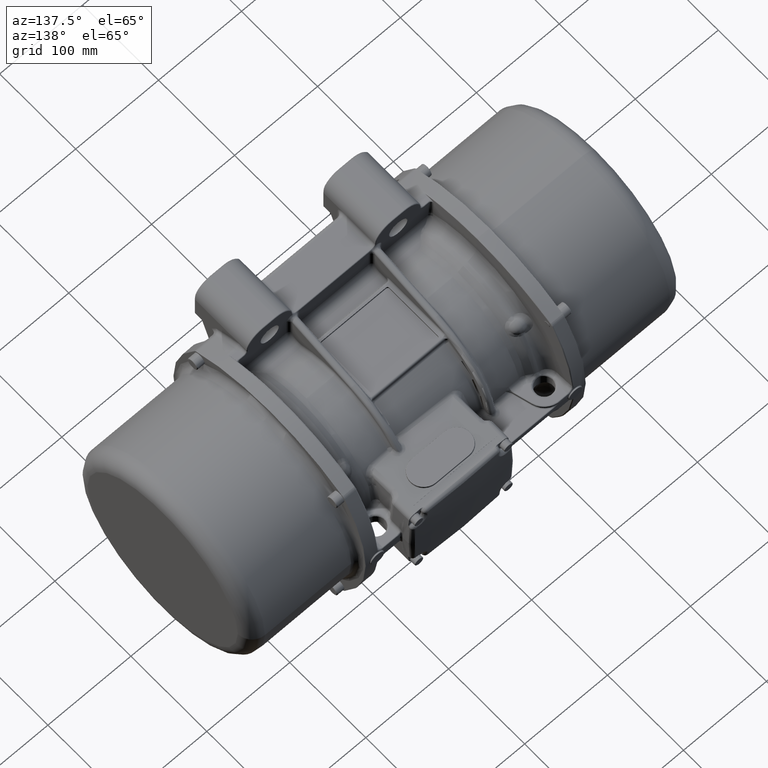
[diagram: clean part render]
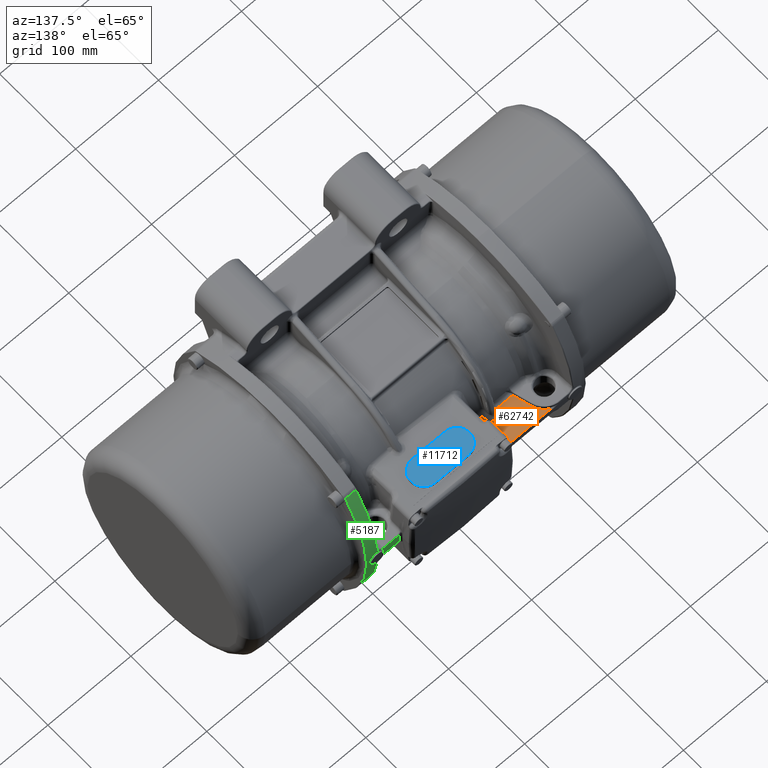
[diagram: same view with three faces highlighted in distinct colors, each labeled with its STEP entity id]
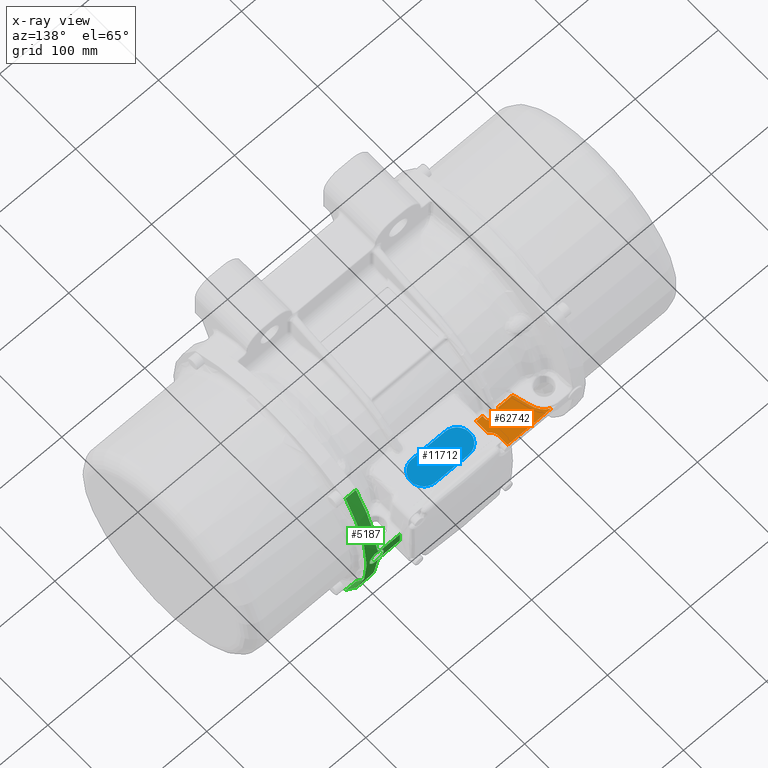
[diagram: x-ray of the same camera — body ghosted, the three highlighted faces saturated]
A machine part, auxiliary view with three faces highlighted in distinct colors.
The next image is the same camera in x-ray (body ghosted, the three faces saturated) — at least one of them is partly hidden behind the body in this view.
Their STEP definitions:

[orange] entity #62742 — the highlighted planar face has unit normal (0, 0, 1).
#448 = EDGE_CURVE ( 'NONE', #31890, #55919, #130550, .T. ) ;
#468 = DIRECTION ( 'NONE',  ( 1.000000000000000000, 0.0000000000000000000, 0.0000000000000000000 ) ) ;
#986 = ORIENTED_EDGE ( 'NONE', *, *, #129531, .T. ) ;
#1199 = DIRECTION ( 'NONE',  ( 1.000000000000000000, 0.0000000000000000000, 0.0000000000000000000 ) ) ;
#2313 = CARTESIAN_POINT ( 'NONE',  ( -47.87035200053827600, 99.58495036448734100, 4.000000000000000900 ) ) ;
#3772 = CARTESIAN_POINT ( 'NONE',  ( -55.61449453451359700, 97.45122297881505300, 3.999999999999999100 ) ) ;
#4032 = EDGE_CURVE ( 'NONE', #93416, #116825, #14400, .T. ) ;
#4224 = CARTESIAN_POINT ( 'NONE',  ( -57.03194645559747000, 95.16699020501924600, 4.000000000000000000 ) ) ;
#4255 = EDGE_CURVE ( 'NONE', #25083, #19216, #59557, .T. ) ;
#4453 = EDGE_CURVE ( 'NONE', #26262, #61039, #90622, .T. ) ;
#4616 = CARTESIAN_POINT ( 'NONE',  ( -45.14858485030604400, 98.51681281897816700, 4.000000000000000900 ) ) ;
#4679 = CARTESIAN_POINT ( 'NONE',  ( -56.95812814533574900, 95.35073130158043900, 4.000000000000000000 ) ) ;
#5064 = CARTESIAN_POINT ( 'NONE',  ( -90.61749835560529200, 124.5727291148714100, 4.000000000000000900 ) ) ;
#5076 = CARTESIAN_POINT ( 'NONE',  ( -44.93056016594049100, 98.37131094263824600, 3.999999999999999100 ) ) ;
#5142 = CARTESIAN_POINT ( 'NONE',  ( -53.53584466805256200, 98.98658497155923900, 3.999999999999999100 ) ) ;
#5575 = DIRECTION ( 'NONE',  ( 0.0000000000000000000, 0.0000000000000000000, 1.000000000000000000 ) ) ;
#5588 = CARTESIAN_POINT ( 'NONE',  ( -56.94810041120414500, 95.37479389683942100, 4.000000000000000000 ) ) ;
#6495 = CARTESIAN_POINT ( 'NONE',  ( -39.30515757637931500, 112.1811241508355900, 3.999999998957960200 ) ) ;
#7784 = CARTESIAN_POINT ( 'NONE',  ( -87.69489923844497500, 122.5018784358797000, 4.000000000000000900 ) ) ;
#8097 = EDGE_CURVE ( 'NONE', #68785, #54281, #57829, .T. ) ;
#8672 = CARTESIAN_POINT ( 'NONE',  ( -81.12126627168974800, 113.0151513921981800, 4.000000000000000900 ) ) ;
#9522 = B_SPLINE_CURVE_WITH_KNOTS ( 'NONE', 3,
 ( #12957, #103315, #115617, #94118, #72048, #72952 ),
 .UNSPECIFIED., .F., .F.,
 ( 4, 2, 4 ),
 ( 0.0000000000000000000, 0.5000000000000000000, 1.000000000000000000 ),
 .UNSPECIFIED. ) ;
#9699 = CARTESIAN_POINT ( 'NONE',  ( -49.00000000000000000, 99.67948635499999500, 4.000000000000000000 ) ) ;
#10825 = VECTOR ( 'NONE', #41386, 1000.000000000000000 ) ;
#10938 = ORIENTED_EDGE ( 'NONE', *, *, #4255, .T. ) ;
#11922 = CARTESIAN_POINT ( 'NONE',  ( -46.38783416343912300, 99.16606049342976800, 4.000000000000000000 ) ) ;
#12394 = CARTESIAN_POINT ( 'NONE',  ( -44.17935594454091600, 97.74844702673415500, 4.000000000000000000 ) ) ;
#12848 = CARTESIAN_POINT ( 'NONE',  ( -47.79408009697087300, 99.57168199811611900, 4.000000000000000000 ) ) ;
#12957 = CARTESIAN_POINT ( 'NONE',  ( -34.40743993700000700, 104.1692854380000200, 4.000000000000000000 ) ) ;
#14375 = CARTESIAN_POINT ( 'NONE',  ( -51.92449545343060900, 99.53281876708609800, 3.999999999999999100 ) ) ;
#14400 = B_SPLINE_CURVE_WITH_KNOTS ( 'NONE', 3,
 ( #24979, #108865, #119376, #47436, #26333, #78566, #78134, #15734, #129923, #89166, #56612, #67130, #14815, #4224, #68042, #89621, #4679, #26791, #5588, #47883, #109778, #119827, #35967, #36875, #46991, #100158, #110236, #77665, #88272, #66694, #3772, #57950, #120742, #15288, #99719, #130377, #37318, #110685, #68486, #25425, #98814, #57065, #109328, #5142, #88713, #25886, #131283, #67592, #121183, #129476, #120297, #57514, #130829, #77213, #14375, #91861, #132632, #81307 ),
 .UNSPECIFIED., .F., .F.,
 ( 4, 1, 1, 1, 1, 1, 2, 2, 1, 1, 1, 1, 1, 2, 2, 1, 1, 1, 2, 2, 1, 1, 1, 1, 1, 2, 2, 1, 1, 2, 2, 1, 1, 1, 1, 2, 2, 1, 1, 2, 2, 4 ),
 ( 0.0000000000000000000, 0.06250000000004633800, 0.09375000000006950000, 0.1093750000000831800, 0.1171875000000900300, 0.1210937500000936100, 0.1230468750000933400, 0.1250000000000930600, 0.1875000000000504600, 0.2187500000000307500, 0.2343750000000209000, 0.2421875000000174900, 0.2460937500000158200, 0.2480468750000137700, 0.2500000000000117100, 0.3124999999999943400, 0.3437499999999851800, 0.3593749999999806300, 0.3671874999999783000, 0.3749999999999759600, 0.4374999999999540900, 0.4687499999999415500, 0.4843749999999352200, 0.4921874999999336600, 0.4960937499999328900, 0.4980468749999309400, 0.4999999999999290000, 0.5624999999999299400, 0.5937499999999305000, 0.6093749999999307200, 0.6249999999999310600, 0.6874999999999353900, 0.7187499999999392700, 0.7343749999999411600, 0.7421874999999428200, 0.7460937499999443800, 0.7499999999999459300, 0.8124999999999602500, 0.8437499999999683600, 0.8593749999999719100, 0.8749999999999754600, 1.000000000000000000 ),
 .UNSPECIFIED. ) ;
#14815 = CARTESIAN_POINT ( 'NONE',  ( -57.11233997810268200, 94.95116420847921300, 4.000000000000000000 ) ) ;
#15231 = CARTESIAN_POINT ( 'NONE',  ( -44.68265368012539800, 98.18936675590538200, 4.000000000000000000 ) ) ;
#15288 = CARTESIAN_POINT ( 'NONE',  ( -55.56210119026753300, 97.50685149164216600, 4.000000000000000900 ) ) ;
#15410 = LINE ( 'NONE', #104661, #30189 ) ;
#15672 = CARTESIAN_POINT ( 'NONE',  ( -44.27699631471825400, 97.83995356513817400, 4.000000000000000000 ) ) ;
#15734 = CARTESIAN_POINT ( 'NONE',  ( -57.39553947996758900, 93.84891383587478200, 4.000000000000000000 ) ) ;
#16100 = VERTEX_POINT ( 'NONE', #31557 ) ;
#17115 = CARTESIAN_POINT ( 'NONE',  ( -34.82419466999999700, 104.9815183000000000, 4.000000000000000000 ) ) ;
#17448 = CARTESIAN_POINT ( 'NONE',  ( -92.39076045984450000, 125.4749006410645900, 4.000000000000000000 ) ) ;
#19216 = VERTEX_POINT ( 'NONE', #76393 ) ;
#20302 = EDGE_LOOP ( 'NONE', ( #127437, #49104, #49623, #986, #101196, #10938, #73533, #79480, #127509, #54389, #126480, #80585, #85749, #71393 ) ) ;
#21645 = CARTESIAN_POINT ( 'NONE',  ( -34.40743993700000700, 107.5118849904999900, 4.000000000000000000 ) ) ;
#22594 = CARTESIAN_POINT ( 'NONE',  ( -42.17348671295530200, 94.21171008563713700, 4.000000000000000000 ) ) ;
#23506 = CARTESIAN_POINT ( 'NONE',  ( -42.51240751507749100, 95.29380579010417300, 4.000000000000000000 ) ) ;
#24110 = DIRECTION ( 'NONE',  ( -1.000000000000000000, -0.0000000000000000000, -0.0000000000000000000 ) ) ;
#24979 = CARTESIAN_POINT ( 'NONE',  ( -57.50000000000000000, 92.65527507899999200, 4.000000000000000000 ) ) ;
#25083 = VERTEX_POINT ( 'NONE', #68119 ) ;
#25294 = DIRECTION ( 'NONE',  ( 1.000000000000000000, 0.0000000000000000000, 0.0000000000000000000 ) ) ;
#25425 = CARTESIAN_POINT ( 'NONE',  ( -54.52717576579737400, 98.40060521837118300, 4.000000000000000000 ) ) ;
#25868 = CARTESIAN_POINT ( 'NONE',  ( -92.73866038299999600, 89.54886934000001000, 4.000000000000000000 ) ) ;
#25886 = CARTESIAN_POINT ( 'NONE',  ( -53.24645819803288300, 99.11648533828319800, 3.999999999999999100 ) ) ;
#26262 = VERTEX_POINT ( 'NONE', #17448 ) ;
#26275 = CARTESIAN_POINT ( 'NONE',  ( -46.33455537135476700, 99.14415194907084600, 4.000000000000001800 ) ) ;
#26333 = CARTESIAN_POINT ( 'NONE',  ( -57.42083664180887600, 93.69633869750013800, 4.000000000000000900 ) ) ;
#26651 = CARTESIAN_POINT ( 'NONE',  ( -63.57305016000000800, 92.56349172299999900, 4.000000000000000000 ) ) ;
#26791 = CARTESIAN_POINT ( 'NONE',  ( -56.95178064898263400, 95.36599306029857800, 4.000000000000000900 ) ) ;
#27695 = CARTESIAN_POINT ( 'NONE',  ( -35.53584822890552200, 105.4928978066104300, 4.000000000000000900 ) ) ;
#28520 = CARTESIAN_POINT ( 'NONE',  ( -86.79146391265244600, 121.7176176860274500, 3.999999999999999100 ) ) ;
#29622 = CARTESIAN_POINT ( 'NONE',  ( -39.40848579400000800, 125.4749006410000000, 4.000000000000000000 ) ) ;
#30189 = VECTOR ( 'NONE', #468, 1000.000000000000000 ) ;
#30309 = CARTESIAN_POINT ( 'NONE',  ( -85.35265543680935700, 120.1981271160351700, 4.000000000000001800 ) ) ;
#31099 = VERTEX_POINT ( 'NONE', #63759 ) ;
#31298 = CARTESIAN_POINT ( 'NONE',  ( -42.00000000000000000, 107.5118849904999900, 4.000000000000000000 ) ) ;
#31557 = CARTESIAN_POINT ( 'NONE',  ( -80.73259473494999800, 111.5646094698612000, 4.000000000038220100 ) ) ;
#31712 = CARTESIAN_POINT ( 'NONE',  ( -57.50000000000000000, 92.60938340100000200, 4.000000000000000000 ) ) ;
#31890 = VERTEX_POINT ( 'NONE', #102339 ) ;
#32675 = CARTESIAN_POINT ( 'NONE',  ( -45.19544845837727800, 98.54733797445422300, 4.000000000000000000 ) ) ;
#33583 = CARTESIAN_POINT ( 'NONE',  ( -47.80679285867990600, 99.57393968098278900, 3.999999999999999100 ) ) ;
#35914 = CARTESIAN_POINT ( 'NONE',  ( -42.31759721971934600, 94.76802698768594300, 4.000000000000000000 ) ) ;
#35967 = CARTESIAN_POINT ( 'NONE',  ( -56.42220996542414500, 96.39413054950877300, 4.000000000000000000 ) ) ;
#36359 = CARTESIAN_POINT ( 'NONE',  ( -42.87011094613013300, 96.06257919055946100, 4.000000000000000000 ) ) ;
#36875 = CARTESIAN_POINT ( 'NONE',  ( -56.37739285359035100, 96.46452249538008100, 4.000000000000000000 ) ) ;
#37103 = EDGE_CURVE ( 'NONE', #16100, #31890, #52163, .T. ) ;
#37318 = CARTESIAN_POINT ( 'NONE',  ( -55.11430990670317000, 97.94776900340534100, 4.000000000000000000 ) ) ;
#38698 = CARTESIAN_POINT ( 'NONE',  ( -39.40848579400000800, 113.0398339001040400, 4.000000000000000900 ) ) ;
#39085 = CARTESIAN_POINT ( 'NONE',  ( -82.99068971705534600, 116.9514280443512200, 4.000000000000000900 ) ) ;
#39131 = EDGE_CURVE ( 'NONE', #93416, #55919, #112684, .T. ) ;
#40422 = CARTESIAN_POINT ( 'NONE',  ( -82.35795446539593500, 115.7894966411759700, 4.000000000000000000 ) ) ;
#40863 = CARTESIAN_POINT ( 'NONE',  ( -84.96246500328477700, 119.7393393831378300, 4.000000000000000000 ) ) ;
#41386 = DIRECTION ( 'NONE',  ( 0.0000000000000000000, -1.000000000000000000, 0.0000000000000000000 ) ) ;
#41400 = CARTESIAN_POINT ( 'NONE',  ( -57.50000000000000000, 92.65527507899999200, 4.000000000000000000 ) ) ;
#41745 = EDGE_CURVE ( 'NONE', #49344, #25083, #15410, .T. ) ;
#43251 = CARTESIAN_POINT ( 'NONE',  ( -42.00000000000000000, 92.65527507899999200, 4.000000000000000000 ) ) ;
#43714 = CARTESIAN_POINT ( 'NONE',  ( -47.52426328371530700, 99.52301537710116000, 4.000000000000001800 ) ) ;
#44162 = CARTESIAN_POINT ( 'NONE',  ( -43.47519671215230400, 96.99672339167953800, 3.999999999999999100 ) ) ;
#44767 = DIRECTION ( 'NONE',  ( 0.2588190451216199600, -0.9659258262839506300, 0.0000000000000000000 ) ) ;
#46485 = CARTESIAN_POINT ( 'NONE',  ( -44.15268491752925700, 97.72291527330142500, 4.000000000000000000 ) ) ;
#46924 = CARTESIAN_POINT ( 'NONE',  ( -44.40953172368545400, 97.95937804434483100, 4.000000000000000000 ) ) ;
#46991 = CARTESIAN_POINT ( 'NONE',  ( -56.34723167729712400, 96.51128924535952100, 3.999999999999999100 ) ) ;
#46999 = LINE ( 'NONE', #31298, #10825 ) ;
#47436 = CARTESIAN_POINT ( 'NONE',  ( -57.44665694860239600, 93.51839479630001500, 4.000000000000000900 ) ) ;
#47883 = CARTESIAN_POINT ( 'NONE',  ( -56.85871939899282500, 95.58765696493443900, 4.000000000000000900 ) ) ;
#48771 = CARTESIAN_POINT ( 'NONE',  ( -37.99963077530032500, 108.5145639155144600, 4.000000046194767100 ) ) ;
#49104 = ORIENTED_EDGE ( 'NONE', *, *, #74825, .F. ) ;
#49344 = VERTEX_POINT ( 'NONE', #122886 ) ;
#49617 = CARTESIAN_POINT ( 'NONE',  ( -89.61909580103430500, 123.9238802616526300, 4.000000000000000000 ) ) ;
#49623 = ORIENTED_EDGE ( 'NONE', *, *, #125487, .T. ) ;
#50506 = CARTESIAN_POINT ( 'NONE',  ( -83.70714227186009300, 118.1141115304080400, 4.000000000000000000 ) ) ;
#50541 = CARTESIAN_POINT ( 'NONE',  ( -39.40848579400000800, 113.9160797830000000, 4.000000000000000000 ) ) ;
#52163 = LINE ( 'NONE', #107999, #65305 ) ;
#53698 = DIRECTION ( 'NONE',  ( -0.0000000000000000000, -1.000000000000000000, -0.0000000000000000000 ) ) ;
#53790 = CARTESIAN_POINT ( 'NONE',  ( -46.31175282531346200, 99.13463861247593900, 4.000000000000000000 ) ) ;
#54235 = CARTESIAN_POINT ( 'NONE',  ( -47.78940137114485500, 99.57084687747782000, 4.000000000000000000 ) ) ;
#54281 = VERTEX_POINT ( 'NONE', #127324 ) ;
#54389 = ORIENTED_EDGE ( 'NONE', *, *, #4453, .F. ) ;
#54694 = CARTESIAN_POINT ( 'NONE',  ( -44.21173500254784000, 97.77913379467828700, 4.000000000000000900 ) ) ;
#55919 = VERTEX_POINT ( 'NONE', #119167 ) ;
#56612 = CARTESIAN_POINT ( 'NONE',  ( -57.34493337516133900, 94.13268291364896400, 4.000000000000000900 ) ) ;
#57003 = CARTESIAN_POINT ( 'NONE',  ( -42.21725406191848900, 94.39851296525419900, 4.000000000000000000 ) ) ;
#57065 = CARTESIAN_POINT ( 'NONE',  ( -54.22346628027963100, 98.60790804647773200, 3.999999999999999100 ) ) ;
#57461 = CARTESIAN_POINT ( 'NONE',  ( -46.49468315289320200, 99.20872061803075300, 4.000000000000000900 ) ) ;
#57514 = CARTESIAN_POINT ( 'NONE',  ( -52.25022498538938700, 99.45816130782877500, 4.000000000000000900 ) ) ;
#57829 = B_SPLINE_CURVE_WITH_KNOTS ( 'NONE', 3,
 ( #58398, #38698, #6495, #111135, #112032, #79937, #120743, #48771, #59308, #132633, #121184, #131725, #27695, #17115 ),
 .UNSPECIFIED., .F., .F.,
 ( 4, 2, 2, 2, 2, 2, 4 ),
 ( 0.0000000000000000000, 0.2499999999999973900, 0.3749999999999980000, 0.4999999999999986700, 0.6249999999999992200, 0.7499999999999998900, 1.000000000000000000 ),
 .UNSPECIFIED. ) ;
#57950 = CARTESIAN_POINT ( 'NONE',  ( -55.58399691365067200, 97.48373223227238800, 4.000000000000001800 ) ) ;
#58398 = CARTESIAN_POINT ( 'NONE',  ( -39.40848579400000800, 113.9160797830000000, 4.000000000000000000 ) ) ;
#59308 = CARTESIAN_POINT ( 'NONE',  ( -37.78009130552514000, 108.1420652312034900, 4.000000050143697200 ) ) ;
#59557 = LINE ( 'NONE', #21645, #94052 ) ;
#59699 = CARTESIAN_POINT ( 'NONE',  ( -80.73259473494999800, 111.5646094698612000, 4.000000000038220100 ) ) ;
#60611 = LINE ( 'NONE', #96548, #108234 ) ;
#61033 = CARTESIAN_POINT ( 'NONE',  ( -84.40153063912275400, 119.0578985416638700, 3.999999999999999100 ) ) ;
#61039 = VERTEX_POINT ( 'NONE', #29622 ) ;
#62742 = ADVANCED_FACE ( 'NONE', ( #135427 ), #79461, .T. ) ;
#63759 = CARTESIAN_POINT ( 'NONE',  ( -42.00000000000000000, 92.65527507899999200, 4.000000000000000000 ) ) ;
#64752 = CARTESIAN_POINT ( 'NONE',  ( -47.95932025714194700, 99.59949987629480000, 4.000000000000000900 ) ) ;
#65212 = CARTESIAN_POINT ( 'NONE',  ( -47.14393643760632100, 99.43228637036435200, 4.000000000000000000 ) ) ;
#65305 = VECTOR ( 'NONE', #44767, 1000.000000000000100 ) ;
#66694 = CARTESIAN_POINT ( 'NONE',  ( -55.67493780492120000, 97.38570227070168500, 4.000000000000000000 ) ) ;
#67130 = CARTESIAN_POINT ( 'NONE',  ( -57.25464391088410600, 94.51479648924832600, 4.000000000000000000 ) ) ;
#67529 = CARTESIAN_POINT ( 'NONE',  ( -41.99999999999999300, 93.11596362522658400, 4.000000000000000900 ) ) ;
#67592 = CARTESIAN_POINT ( 'NONE',  ( -53.17673509840738400, 99.14579613019927300, 4.000000000000001800 ) ) ;
#67981 = CARTESIAN_POINT ( 'NONE',  ( -42.59042158332967200, 95.48032880461987300, 4.000000000000000000 ) ) ;
#68042 = CARTESIAN_POINT ( 'NONE',  ( -56.98943930531625300, 95.27431373752038700, 4.000000000000000900 ) ) ;
#68119 = CARTESIAN_POINT ( 'NONE',  ( -34.40743993700000700, 89.54886934000001000, 4.000000000000000000 ) ) ;
#68486 = CARTESIAN_POINT ( 'NONE',  ( -54.62791216705441900, 98.32824577571736300, 3.999999999999998200 ) ) ;
#68785 = VERTEX_POINT ( 'NONE', #50541 ) ;
#69825 = EDGE_CURVE ( 'NONE', #19216, #54281, #9522, .T. ) ;
#70200 = CARTESIAN_POINT ( 'NONE',  ( -82.49432970401503000, 116.0524660249870800, 4.000000000000001800 ) ) ;
#70650 = CARTESIAN_POINT ( 'NONE',  ( -88.96499492391573900, 123.4724466512070100, 4.000000000000001800 ) ) ;
#71393 = ORIENTED_EDGE ( 'NONE', *, *, #39131, .F. ) ;
#72048 = CARTESIAN_POINT ( 'NONE',  ( -34.69253538118572800, 104.8869825295147800, 4.000000000000000000 ) ) ;
#72952 = CARTESIAN_POINT ( 'NONE',  ( -34.82419466999999700, 104.9815183000000000, 4.000000000000000000 ) ) ;
#73533 = ORIENTED_EDGE ( 'NONE', *, *, #69825, .T. ) ;
#74666 = LINE ( 'NONE', #98468, #127202 ) ;
#74825 = EDGE_CURVE ( 'NONE', #102265, #116825, #60611, .T. ) ;
#75249 = CARTESIAN_POINT ( 'NONE',  ( -48.13720618948635600, 99.62558865608751500, 4.000000000000000000 ) ) ;
#75717 = CARTESIAN_POINT ( 'NONE',  ( -48.49277573072369300, 99.66572524038406300, 4.000000000000000000 ) ) ;
#76393 = CARTESIAN_POINT ( 'NONE',  ( -34.40743993700000700, 104.1692854380000200, 4.000000000000000000 ) ) ;
#77213 = CARTESIAN_POINT ( 'NONE',  ( -51.97787212451972700, 99.52146576683917100, 3.999999999999998200 ) ) ;
#77665 = CARTESIAN_POINT ( 'NONE',  ( -56.02214223045581300, 96.97851638845604300, 4.000000000000000000 ) ) ;
#78070 = CARTESIAN_POINT ( 'NONE',  ( -42.13957171939261300, 94.05176143522808700, 4.000000000000000900 ) ) ;
#78134 = CARTESIAN_POINT ( 'NONE',  ( -57.39886455381633100, 93.82983927768512400, 4.000000000000000900 ) ) ;
#78511 = CARTESIAN_POINT ( 'NONE',  ( -47.82586154962859800, 99.57729932810580900, 4.000000000000000000 ) ) ;
#78566 = CARTESIAN_POINT ( 'NONE',  ( -57.40643685532786100, 93.78533502197724700, 3.999999999999999100 ) ) ;
#79461 = PLANE ( 'NONE',  #105826 ) ;
#79480 = ORIENTED_EDGE ( 'NONE', *, *, #8097, .F. ) ;
#79937 = CARTESIAN_POINT ( 'NONE',  ( -38.56952946432954800, 109.6817367911305800, 4.000000022854043100 ) ) ;
#80585 = ORIENTED_EDGE ( 'NONE', *, *, #37103, .T. ) ;
#81235 = CARTESIAN_POINT ( 'NONE',  ( -82.65588024140338100, 116.3546866414247200, 4.000000000000000000 ) ) ;
#81307 = CARTESIAN_POINT ( 'NONE',  ( -50.50000000000000000, 99.67948635499999500, 4.000000000000000000 ) ) ;
#83181 = CARTESIAN_POINT ( 'NONE',  ( -48.79720278301017100, 99.67948635499992300, 4.000000000000000000 ) ) ;
#84785 = VECTOR ( 'NONE', #53698, 1000.000000000000000 ) ;
#85390 = CARTESIAN_POINT ( 'NONE',  ( -45.77172631109881700, 98.88905798345346900, 3.999999999999999100 ) ) ;
#85592 = CARTESIAN_POINT ( 'NONE',  ( -49.00000000000000000, 99.67948635499999500, 4.000000000000000000 ) ) ;
#85749 = ORIENTED_EDGE ( 'NONE', *, *, #448, .T. ) ;
#85858 = CARTESIAN_POINT ( 'NONE',  ( -42.67859776168529600, 95.67698695179191800, 4.000000000000000900 ) ) ;
#86315 = CARTESIAN_POINT ( 'NONE',  ( -46.07439008086423400, 99.03425797962957200, 4.000000000000000900 ) ) ;
#88272 = CARTESIAN_POINT ( 'NONE',  ( -55.79361646046341100, 97.25265204967985300, 4.000000000000000900 ) ) ;
#88713 = CARTESIAN_POINT ( 'NONE',  ( -53.34354207513995800, 99.07440954769535300, 4.000000000000000900 ) ) ;
#89106 = CARTESIAN_POINT ( 'NONE',  ( -42.53055198305666800, 95.33827250951253500, 4.000000000000000000 ) ) ;
#89166 = CARTESIAN_POINT ( 'NONE',  ( -57.39248493652913700, 93.86627461702011000, 4.000000000000000900 ) ) ;
#89611 = DIRECTION ( 'NONE',  ( 1.000000000000000000, 0.0000000000000000000, 0.0000000000000000000 ) ) ;
#89621 = CARTESIAN_POINT ( 'NONE',  ( -56.96760813291846400, 95.32782813732873700, 4.000000000000000000 ) ) ;
#89785 = B_SPLINE_CURVE_WITH_KNOTS ( 'NONE', 3,
 ( #120671, #90439, #5064, #49617, #70650, #103693, #7784, #28520, #112856, #30309, #93145, #134372, #40863, #61033, #50506, #39085, #81235, #70200, #113730, #123380, #40422, #114195, #8672, #59699 ),
 .UNSPECIFIED., .F., .F.,
 ( 4, 1, 2, 2, 1, 1, 1, 2, 2, 1, 1, 1, 1, 2, 2, 4 ),
 ( 0.0000000000000000000, 0.1250000000000009200, 0.1875000000000017500, 0.2500000000000025500, 0.3750000000000042200, 0.4375000000000042200, 0.4687500000000042200, 0.4843750000000043300, 0.5000000000000044400, 0.6249999999999934500, 0.6874999999999883400, 0.7187499999999857900, 0.7343749999999844600, 0.7421874999999839000, 0.7499999999999832400, 1.000000000000000000 ),
 .UNSPECIFIED. ) ;
#90439 = CARTESIAN_POINT ( 'NONE',  ( -91.66765462685570800, 125.1366732807410500, 4.000000000000000000 ) ) ;
#90622 = LINE ( 'NONE', #127800, #134901 ) ;
#91861 = CARTESIAN_POINT ( 'NONE',  ( -51.41665401452002000, 99.63435786641109400, 4.000000000000000000 ) ) ;
#93145 = CARTESIAN_POINT ( 'NONE',  ( -85.15726875056698500, 119.9705545876254900, 4.000000000000000000 ) ) ;
#93416 = VERTEX_POINT ( 'NONE', #41400 ) ;
#93693 = CARTESIAN_POINT ( 'NONE',  ( -50.50000000000000000, 99.67948635499999500, 4.000000000000000000 ) ) ;
#94024 = B_SPLINE_CURVE_WITH_KNOTS ( 'NONE', 3,
 ( #9699, #83181, #75717, #75249, #64752, #2313, #78511, #33583, #12848, #54235, #43714, #65212, #109267, #57461, #11922, #26275, #53790, #99206, #106935, #86315, #85390, #95953, #128006, #32675, #4616, #127103, #5076, #15231, #46924, #15672, #54694, #12394, #130771, #106485, #46485, #120233, #44162, #117450, #36359, #85858, #67981, #117002, #89106, #106041, #23506, #96859, #35914, #57003, #22594, #109720, #119766, #78070, #130325, #67529, #43251 ),
 .UNSPECIFIED., .F., .F.,
 ( 4, 1, 1, 1, 1, 1, 2, 2, 1, 1, 1, 1, 1, 2, 2, 1, 1, 1, 2, 2, 1, 1, 1, 1, 1, 2, 2, 2, 1, 1, 1, 1, 2, 2, 1, 1, 1, 2, 2, 4 ),
 ( 0.0000000000000000000, 0.06250000000011245200, 0.09375000000016867100, 0.1093750000001970600, 0.1171875000002109400, 0.1210937500002172000, 0.1230468750002189200, 0.1250000000002206300, 0.1875000000002677000, 0.2187500000002925200, 0.2343750000003049200, 0.2421875000003105300, 0.2460937500003125600, 0.2480468750003141900, 0.2500000000003158600, 0.3125000000003276300, 0.3437500000003352900, 0.3593750000003401200, 0.3671875000003433400, 0.3750000000003465600, 0.4375000000003707000, 0.4687500000003822500, 0.4843750000003888600, 0.4921875000003914600, 0.4960937500003919600, 0.4980468750003929600, 0.5000000000003939100, 0.6250000000002734500, 0.6875000000002122700, 0.7187500000001796300, 0.7343750000001617600, 0.7421875000001528800, 0.7460937500001483300, 0.7500000000001437700, 0.8125000000000920400, 0.8437500000000659500, 0.8593750000000528500, 0.8671875000000485200, 0.8750000000000440800, 1.000000000000000000 ),
 .UNSPECIFIED. ) ;
#94052 = VECTOR ( 'NONE', #116069, 1000.000000000000000 ) ;
#94118 = CARTESIAN_POINT ( 'NONE',  ( -34.59032959968573100, 104.7682992985147600, 4.000000000000000000 ) ) ;
#95953 = CARTESIAN_POINT ( 'NONE',  ( -45.43228902055729200, 98.69550739184553800, 4.000000000000000000 ) ) ;
#96548 = CARTESIAN_POINT ( 'NONE',  ( -49.75000000000000000, 99.67948635499999500, 4.000000000000000000 ) ) ;
#96859 = CARTESIAN_POINT ( 'NONE',  ( -42.42556300047629500, 95.07773888668036500, 4.000000000000000000 ) ) ;
#96984 = EDGE_CURVE ( 'NONE', #26262, #16100, #89785, .T. ) ;
#98468 = CARTESIAN_POINT ( 'NONE',  ( -39.40848579400000800, 119.6954902120000000, 4.000000000000000000 ) ) ;
#98814 = CARTESIAN_POINT ( 'NONE',  ( -54.47509179689946300, 98.43696919058405100, 4.000000000000000900 ) ) ;
#99206 = CARTESIAN_POINT ( 'NONE',  ( -46.29655806617367400, 99.12826884131462200, 4.000000000000000000 ) ) ;
#99381 = EDGE_CURVE ( 'NONE', #61039, #68785, #74666, .T. ) ;
#99719 = CARTESIAN_POINT ( 'NONE',  ( -55.55863560269741400, 97.51049712892799400, 4.000000000000000900 ) ) ;
#100158 = CARTESIAN_POINT ( 'NONE',  ( -56.33086636980397100, 96.53631990835404500, 4.000000000000000000 ) ) ;
#101196 = ORIENTED_EDGE ( 'NONE', *, *, #41745, .T. ) ;
#102265 = VERTEX_POINT ( 'NONE', #85592 ) ;
#102339 = CARTESIAN_POINT ( 'NONE',  ( -75.64126057898700100, 92.56349172295149700, 3.999999999933985300 ) ) ;
#102744 = VECTOR ( 'NONE', #25294, 1000.000000000000000 ) ;
#103315 = CARTESIAN_POINT ( 'NONE',  ( -34.40743996310105500, 104.3292563293236600, 4.000000000000000000 ) ) ;
#103693 = CARTESIAN_POINT ( 'NONE',  ( -88.64476830931298000, 123.2381279995275100, 3.999999999999999100 ) ) ;
#104661 = CARTESIAN_POINT ( 'NONE',  ( -63.57305016000000800, 89.54886934000001000, 4.000000000000000000 ) ) ;
#105826 = AXIS2_PLACEMENT_3D ( 'NONE', #25868, #5575, #89611 ) ;
#106041 = CARTESIAN_POINT ( 'NONE',  ( -42.51885781637096800, 95.30971872327511100, 4.000000000000000000 ) ) ;
#106485 = CARTESIAN_POINT ( 'NONE',  ( -44.15632988328194100, 97.72641583519924800, 3.999999999999998200 ) ) ;
#106935 = CARTESIAN_POINT ( 'NONE',  ( -46.28784195291240900, 99.12459524283058000, 4.000000000000000000 ) ) ;
#107999 = CARTESIAN_POINT ( 'NONE',  ( -80.73259473499999200, 111.5646094700000100, 4.000000000000000000 ) ) ;
#108234 = VECTOR ( 'NONE', #24110, 1000.000000000000000 ) ;
#108865 = CARTESIAN_POINT ( 'NONE',  ( -57.49999999999997900, 92.85815670261605700, 4.000000000000000000 ) ) ;
#109267 = CARTESIAN_POINT ( 'NONE',  ( -46.70954675294255800, 99.28941301076521600, 4.000000000000000000 ) ) ;
#109328 = CARTESIAN_POINT ( 'NONE',  ( -53.91298920867227900, 98.79624383944577900, 3.999999999999999100 ) ) ;
#109720 = CARTESIAN_POINT ( 'NONE',  ( -42.15610161267191800, 94.13121330828667500, 4.000000000000000900 ) ) ;
#109778 = CARTESIAN_POINT ( 'NONE',  ( -56.71512177056487800, 95.88953770420280900, 4.000000000000000000 ) ) ;
#110236 = CARTESIAN_POINT ( 'NONE',  ( -56.20288167714879500, 96.72976830309829700, 4.000000000000000000 ) ) ;
#110685 = CARTESIAN_POINT ( 'NONE',  ( -54.77734409797518800, 98.21789891247445300, 4.000000000000000000 ) ) ;
#111135 = CARTESIAN_POINT ( 'NONE',  ( -39.00080147455454200, 110.9188838724905000, 4.000000005204667800 ) ) ;
#112032 = CARTESIAN_POINT ( 'NONE',  ( -38.87345164894323100, 110.5005208050230400, 4.000000008783668900 ) ) ;
#112684 = LINE ( 'NONE', #31712, #84785 ) ;
#112856 = CARTESIAN_POINT ( 'NONE',  ( -85.81871508644333300, 120.7186272353422100, 4.000000000000000000 ) ) ;
#113730 = CARTESIAN_POINT ( 'NONE',  ( -82.42634823094233800, 115.9221179218764200, 4.000000000000000000 ) ) ;
#114195 = CARTESIAN_POINT ( 'NONE',  ( -81.65596201563640500, 114.4095078350606800, 4.000000000000000900 ) ) ;
#115617 = CARTESIAN_POINT ( 'NONE',  ( -34.44482505131427500, 104.4826379154852400, 4.000000000000000000 ) ) ;
#116069 = DIRECTION ( 'NONE',  ( 0.0000000000000000000, 1.000000000000000000, 0.0000000000000000000 ) ) ;
#116825 = VERTEX_POINT ( 'NONE', #93693 ) ;
#117002 = CARTESIAN_POINT ( 'NONE',  ( -42.54822859761856800, 95.38103422408683200, 4.000000000000000000 ) ) ;
#117450 = CARTESIAN_POINT ( 'NONE',  ( -43.06025509462618600, 96.37984558565774800, 4.000000000000000000 ) ) ;
#118590 = DIRECTION ( 'NONE',  ( -0.0000000000000000000, -1.000000000000000000, -0.0000000000000000000 ) ) ;
#119167 = CARTESIAN_POINT ( 'NONE',  ( -57.50000000000000000, 92.56349172299999900, 4.000000000000000000 ) ) ;
#119376 = CARTESIAN_POINT ( 'NONE',  ( -57.48638049751551900, 93.16270198491638200, 4.000000000000000900 ) ) ;
#119766 = CARTESIAN_POINT ( 'NONE',  ( -42.14481650914663600, 94.07745136774819600, 4.000000000000000000 ) ) ;
#119827 = CARTESIAN_POINT ( 'NONE',  ( -56.52381065812741700, 96.22818992949379400, 4.000000000000000000 ) ) ;
#120233 = CARTESIAN_POINT ( 'NONE',  ( -43.79256548623040100, 97.37584107911469300, 4.000000000000000000 ) ) ;
#120297 = CARTESIAN_POINT ( 'NONE',  ( -52.62663232198110600, 99.35431065169088100, 4.000000000000000000 ) ) ;
#120671 = CARTESIAN_POINT ( 'NONE',  ( -92.39076045984450000, 125.4749006410645900, 4.000000000000000000 ) ) ;
#120742 = CARTESIAN_POINT ( 'NONE',  ( -55.57086736492534100, 97.49761096219708600, 3.999999999999999100 ) ) ;
#120743 = CARTESIAN_POINT ( 'NONE',  ( -38.39430352490362000, 109.2842755929676300, 4.000000032956628500 ) ) ;
#121183 = CARTESIAN_POINT ( 'NONE',  ( -53.16168241412815800, 99.15202864211151700, 3.999999999999999100 ) ) ;
#121184 = CARTESIAN_POINT ( 'NONE',  ( -37.03004791713717500, 107.0724263410016400, 4.000000046302821100 ) ) ;
#122886 = CARTESIAN_POINT ( 'NONE',  ( -42.00000000000000000, 89.54886934000001000, 4.000000000000000000 ) ) ;
#123380 = CARTESIAN_POINT ( 'NONE',  ( -82.38130602034330300, 115.8350358571847800, 4.000000000000000000 ) ) ;
#125487 = EDGE_CURVE ( 'NONE', #102265, #31099, #94024, .T. ) ;
#126480 = ORIENTED_EDGE ( 'NONE', *, *, #96984, .T. ) ;
#127103 = CARTESIAN_POINT ( 'NONE',  ( -45.12339100616369300, 98.50017458538552300, 4.000000000000000000 ) ) ;
#127202 = VECTOR ( 'NONE', #118590, 1000.000000000000000 ) ;
#127324 = CARTESIAN_POINT ( 'NONE',  ( -34.82419466999999700, 104.9815183000000000, 4.000000000000000000 ) ) ;
#127437 = ORIENTED_EDGE ( 'NONE', *, *, #4032, .T. ) ;
#127509 = ORIENTED_EDGE ( 'NONE', *, *, #99381, .F. ) ;
#127800 = CARTESIAN_POINT ( 'NONE',  ( -65.07499444450000700, 125.4749006410000000, 4.000000000000000000 ) ) ;
#128006 = CARTESIAN_POINT ( 'NONE',  ( -45.26598798549937200, 98.59269444702424300, 4.000000000000001800 ) ) ;
#129476 = CARTESIAN_POINT ( 'NONE',  ( -52.94187558231490700, 99.24226727891549200, 3.999999999999999100 ) ) ;
#129531 = EDGE_CURVE ( 'NONE', #31099, #49344, #46999, .T. ) ;
#129923 = CARTESIAN_POINT ( 'NONE',  ( -57.39330503034121000, 93.86163049816639200, 4.000000000000000000 ) ) ;
#130325 = CARTESIAN_POINT ( 'NONE',  ( -42.04466295020562700, 93.57205303014409000, 4.000000000000000000 ) ) ;
#130377 = CARTESIAN_POINT ( 'NONE',  ( -55.38306569117774100, 97.69453669019932800, 4.000000000000000000 ) ) ;
#130550 = LINE ( 'NONE', #26651, #102744 ) ;
#130771 = CARTESIAN_POINT ( 'NONE',  ( -44.16553311926902100, 97.73523622274794300, 4.000000000000000000 ) ) ;
#130829 = CARTESIAN_POINT ( 'NONE',  ( -52.08705965552098900, 99.49691160072356400, 3.999999999999999100 ) ) ;
#131283 = CARTESIAN_POINT ( 'NONE',  ( -53.20465098341904300, 99.13412428478945100, 4.000000000000000000 ) ) ;
#131725 = CARTESIAN_POINT ( 'NONE',  ( -36.17600075538063500, 106.0799101135697800, 4.000000026517692900 ) ) ;
#132632 = CARTESIAN_POINT ( 'NONE',  ( -50.96063113889171300, 99.67948635499999500, 4.000000000000000900 ) ) ;
#132633 = CARTESIAN_POINT ( 'NONE',  ( -37.29620153108570000, 107.4219852175005100, 4.000000050198208300 ) ) ;
#134372 = CARTESIAN_POINT ( 'NONE',  ( -85.02797832942788100, 119.8178393356397700, 4.000000000000000900 ) ) ;
#134901 = VECTOR ( 'NONE', #1199, 1000.000000000000000 ) ;
#135427 = FACE_OUTER_BOUND ( 'NONE', #20302, .T. ) ;

[blue] entity #11712 — the highlighted planar face has unit normal (0, 0, 1).
#5776 = EDGE_CURVE ( 'NONE', #41238, #32852, #121772, .T. ) ;
#10364 = CARTESIAN_POINT ( 'NONE',  ( 47.50000000000000000, 125.5000000000138000, 51.00000000000000000 ) ) ;
#11712 = ADVANCED_FACE ( 'NONE', ( #94739 ), #54784, .T. ) ;
#13537 = ORIENTED_EDGE ( 'NONE', *, *, #15585, .F. ) ;
#13889 = DIRECTION ( 'NONE',  ( 0.0000000000000000000, 0.0000000000000000000, 1.000000000000000000 ) ) ;
#14832 = DIRECTION ( 'NONE',  ( -0.0000000000000000000, -0.0000000000000000000, -1.000000000000000000 ) ) ;
#15475 = DIRECTION ( 'NONE',  ( -0.0000000000000000000, -0.0000000000000000000, -1.000000000000000000 ) ) ;
#15585 = EDGE_CURVE ( 'NONE', #32852, #20237, #122426, .T. ) ;
#17351 = DIRECTION ( 'NONE',  ( -2.238352872228140100E-016, -0.0000000000000000000, -1.000000000000000000 ) ) ;
#17742 = EDGE_LOOP ( 'NONE', ( #48488, #108388, #13537, #92171, #133207 ) ) ;
#17969 = CARTESIAN_POINT ( 'NONE',  ( 7.500000000000000000, 125.5000000000000000, 51.00000000000000000 ) ) ;
#18473 = CARTESIAN_POINT ( 'NONE',  ( 27.50000000000000000, 125.5000000000000000, 51.00000000000000000 ) ) ;
#20237 = VERTEX_POINT ( 'NONE', #92562 ) ;
#25443 = DIRECTION ( 'NONE',  ( 1.000000000000000000, 0.0000000000000000000, 0.0000000000000000000 ) ) ;
#26970 = VECTOR ( 'NONE', #28130, 1000.000000000000000 ) ;
#28130 = DIRECTION ( 'NONE',  ( 1.000000000000000000, 0.0000000000000000000, 0.0000000000000000000 ) ) ;
#32852 = VERTEX_POINT ( 'NONE', #124013 ) ;
#36314 = AXIS2_PLACEMENT_3D ( 'NONE', #76735, #13889, #106124 ) ;
#41238 = VERTEX_POINT ( 'NONE', #10364 ) ;
#41711 = CIRCLE ( 'NONE', #95476, 15.50000000000000000 ) ;
#48488 = ORIENTED_EDGE ( 'NONE', *, *, #118229, .F. ) ;
#51978 = EDGE_CURVE ( 'NONE', #99730, #41238, #89344, .T. ) ;
#54784 = PLANE ( 'NONE',  #36314 ) ;
#58592 = CARTESIAN_POINT ( 'NONE',  ( 47.50000000000000000, 110.0000000000000000, 51.00000000000000000 ) ) ;
#61868 = LINE ( 'NONE', #111459, #101381 ) ;
#65627 = AXIS2_PLACEMENT_3D ( 'NONE', #77688, #14832, #25443 ) ;
#76735 = CARTESIAN_POINT ( 'NONE',  ( -8.426000000000000200, 94.50000000000000000, 51.00000000000000000 ) ) ;
#77009 = AXIS2_PLACEMENT_3D ( 'NONE', #58592, #15475, #88904 ) ;
#77688 = CARTESIAN_POINT ( 'NONE',  ( 47.50000000000000000, 110.0000000000000000, 51.00000000000000000 ) ) ;
#88904 = DIRECTION ( 'NONE',  ( 1.000000000000000000, 0.0000000000000000000, 0.0000000000000000000 ) ) ;
#89344 = LINE ( 'NONE', #18473, #26970 ) ;
#90738 = DIRECTION ( 'NONE',  ( 1.000000000000000000, 0.0000000000000000000, -4.476705744456276300E-016 ) ) ;
#92042 = CARTESIAN_POINT ( 'NONE',  ( 7.500000000000000000, 94.50000000000000000, 51.00000000000000000 ) ) ;
#92171 = ORIENTED_EDGE ( 'NONE', *, *, #5776, .F. ) ;
#92562 = CARTESIAN_POINT ( 'NONE',  ( 47.50000000000000000, 94.49999999998630100, 51.00000000000000000 ) ) ;
#94739 = FACE_OUTER_BOUND ( 'NONE', #17742, .T. ) ;
#95476 = AXIS2_PLACEMENT_3D ( 'NONE', #123230, #17351, #90738 ) ;
#99730 = VERTEX_POINT ( 'NONE', #17969 ) ;
#101381 = VECTOR ( 'NONE', #132520, 1000.000000000000000 ) ;
#106124 = DIRECTION ( 'NONE',  ( 1.000000000000000000, 0.0000000000000000000, 0.0000000000000000000 ) ) ;
#106884 = VERTEX_POINT ( 'NONE', #92042 ) ;
#108388 = ORIENTED_EDGE ( 'NONE', *, *, #127356, .F. ) ;
#111459 = CARTESIAN_POINT ( 'NONE',  ( 27.50000000000000000, 94.50000000000000000, 51.00000000000000000 ) ) ;
#118229 = EDGE_CURVE ( 'NONE', #106884, #99730, #41711, .T. ) ;
#121772 = CIRCLE ( 'NONE', #77009, 15.50000000005495500 ) ;
#122426 = CIRCLE ( 'NONE', #65627, 15.50000000005495500 ) ;
#123230 = CARTESIAN_POINT ( 'NONE',  ( 7.500000000000000000, 110.0000000000000000, 51.00000000000000000 ) ) ;
#124013 = CARTESIAN_POINT ( 'NONE',  ( 63.00000000005495300, 110.0000000000000000, 51.00000000000000000 ) ) ;
#127356 = EDGE_CURVE ( 'NONE', #20237, #106884, #61868, .T. ) ;
#132520 = DIRECTION ( 'NONE',  ( -1.000000000000000000, 0.0000000000000000000, 0.0000000000000000000 ) ) ;
#133207 = ORIENTED_EDGE ( 'NONE', *, *, #51978, .F. ) ;

[green] entity #5187 — the highlighted cylindrical surface (partial cylindrical patch) has radius 180.3 mm, axis along (1, 0, 0).
#437 = CARTESIAN_POINT ( 'NONE',  ( 122.8105708369623800, 126.3308908144105400, 7.807193843803519300 ) ) ;
#572 = AXIS2_PLACEMENT_3D ( 'NONE', #82794, #114839, #83248 ) ;
#889 = CARTESIAN_POINT ( 'NONE',  ( 112.5391361952074000, 126.4343865452689500, 4.863909627997109000 ) ) ;
#1329 = CARTESIAN_POINT ( 'NONE',  ( 112.4732949933770100, 126.4369307744158100, 4.768542366620406100 ) ) ;
#1712 = CARTESIAN_POINT ( 'NONE',  ( 111.0706702699447600, 126.4966951386176100, -1.104844768801842600 ) ) ;
#1773 = CARTESIAN_POINT ( 'NONE',  ( 111.1277496684769400, 126.4940453010846300, 1.465347497482166300 ) ) ;
#1804 = EDGE_LOOP ( 'NONE', ( #36494, #22643, #106747, #78199, #82033, #40358, #100755, #92855, #9837, #117260, #34154, #73555, #109180 ) ) ;
#2144 = CARTESIAN_POINT ( 'NONE',  ( 91.40710182901129600, 126.3522834187169900, -7.296912300860479500 ) ) ;
#2163 = CARTESIAN_POINT ( 'NONE',  ( 91.40710182901129600, 126.3522834187169900, 7.296912300860489300 ) ) ;
#3064 = CARTESIAN_POINT ( 'NONE',  ( 117.7082570435669500, 126.3097346909222400, -8.280957003150264800 ) ) ;
#3152 = EDGE_CURVE ( 'NONE', #63754, #82205, #69542, .T. ) ;
#3510 = CARTESIAN_POINT ( 'NONE',  ( 113.4742221328716000, 126.4008558331550200, -5.978429907784376800 ) ) ;
#3806 = DIRECTION ( 'NONE',  ( -1.000000000000000000, 0.0000000000000000000, 0.0000000000000000000 ) ) ;
#3965 = CARTESIAN_POINT ( 'NONE',  ( 119.4669028907995200, 126.3006387842752800, -8.476432599806177100 ) ) ;
#4036 = EDGE_CURVE ( 'NONE', #83380, #97146, #48914, .T. ) ;
#4312 = CARTESIAN_POINT ( 'NONE',  ( 118.4667632800000100, 125.9906931918639800, 13.54240162098976100 ) ) ;
#4414 = CARTESIAN_POINT ( 'NONE',  ( 113.4896890391179300, 126.4003423256356100, -5.993882567437759200 ) ) ;
#4881 = CARTESIAN_POINT ( 'NONE',  ( 123.3250628298553000, 126.3408126364809500, -7.576296201475790900 ) ) ;
#5187 = ADVANCED_FACE ( 'NONE', ( #51141, #92191 ), #29791, .T. ) ;
#5331 = CARTESIAN_POINT ( 'NONE',  ( 124.7102325678785600, 126.3752921871507600, -6.708422552613820100 ) ) ;
#5798 = CARTESIAN_POINT ( 'NONE',  ( 127.8013224828165300, 126.4907915332004200, -1.824022953034756900 ) ) ;
#6240 = CARTESIAN_POINT ( 'NONE',  ( 127.5210067507878500, 126.4781492015609500, -2.816682574677980000 ) ) ;
#6372 = CARTESIAN_POINT ( 'NONE',  ( 112.3375866463958900, 126.3795303129488400, 6.589931306160498700 ) ) ;
#6966 = DIRECTION ( 'NONE',  ( -1.000000000000000000, 0.0000000000000000000, 0.0000000000000000000 ) ) ;
#7259 = CARTESIAN_POINT ( 'NONE',  ( 116.6434609899715700, 126.2838992204187200, -8.825061603291052500 ) ) ;
#7285 = CARTESIAN_POINT ( 'NONE',  ( 114.4025119924214800, 126.3569129158609900, 7.182226142433989900 ) ) ;
#7373 = CARTESIAN_POINT ( 'NONE',  ( 127.8666450519625500, 126.4937971293415600, 1.496213602950968100 ) ) ;
#7496 = CARTESIAN_POINT ( 'NONE',  ( 118.6140500239548200, 117.9576881605562600, 54.84310673185570600 ) ) ;
#7716 = CARTESIAN_POINT ( 'NONE',  ( 115.7966468971440200, 126.3209311257107400, -8.034035781571995800 ) ) ;
#7818 = CARTESIAN_POINT ( 'NONE',  ( 126.0760323924649200, 126.4199857309506400, 5.370924437819382100 ) ) ;
#8175 = CARTESIAN_POINT ( 'NONE',  ( 113.0608888068749400, 126.3747925028017500, -6.718206215239469300 ) ) ;
#8190 = CARTESIAN_POINT ( 'NONE',  ( 111.4771175350000000, 126.3814846441208000, 6.536252091004390000 ) ) ;
#8398 = CARTESIAN_POINT ( 'NONE',  ( 118.5978138314892200, 118.8542729907732300, 51.95625905717864200 ) ) ;
#8610 = CARTESIAN_POINT ( 'NONE',  ( 117.9161334922322800, 126.1740942296363200, -10.83584090815680200 ) ) ;
#8629 = CARTESIAN_POINT ( 'NONE',  ( 118.4667632800000100, 125.9906931918639800, 13.54240162098976100 ) ) ;
#9167 = CARTESIAN_POINT ( 'NONE',  ( 119.5245286186806200, 126.3006372886664500, 8.476464377232119300 ) ) ;
#9609 = CARTESIAN_POINT ( 'NONE',  ( 118.8932594093039100, 126.3014145404432200, 8.459980779260348500 ) ) ;
#9837 = ORIENTED_EDGE ( 'NONE', *, *, #83939, .T. ) ;
#9965 = CARTESIAN_POINT ( 'NONE',  ( 111.1237770738028600, 126.4942380644558700, -1.442053907180618400 ) ) ;
#10000 = CARTESIAN_POINT ( 'NONE',  ( 117.9316755238705700, 126.1727507884130800, 10.85813857494557400 ) ) ;
#10068 = CARTESIAN_POINT ( 'NONE',  ( 119.5016244749187700, 126.3006359288989000, 8.476493268330401100 ) ) ;
#10301 = CARTESIAN_POINT ( 'NONE',  ( 118.4667632800000100, 125.9906931918639800, -13.54240162098976100 ) ) ;
#10439 = CARTESIAN_POINT ( 'NONE',  ( 117.5949362845768300, 126.2147298170676100, 10.14242224154781400 ) ) ;
#10519 = CARTESIAN_POINT ( 'NONE',  ( 123.2483649047030500, 126.3393219674868700, 7.610684596908900100 ) ) ;
#10966 = CARTESIAN_POINT ( 'NONE',  ( 114.2898819991273700, 126.3754740211053000, 6.703008546372974100 ) ) ;
#11837 = DIRECTION ( 'NONE',  ( 1.000000000000000000, 0.0000000000000000000, 0.0000000000000000000 ) ) ;
#11838 = CARTESIAN_POINT ( 'NONE',  ( 112.3055668209771200, 126.4434443569461300, 4.521595237448732300 ) ) ;
#12703 = CARTESIAN_POINT ( 'NONE',  ( 111.0000943200118500, 126.4999955783111900, -0.2638994739525834500 ) ) ;
#13622 = CARTESIAN_POINT ( 'NONE',  ( 91.42669494776930600, 126.4342766358054500, -5.272584795654842600 ) ) ;
#13644 = CARTESIAN_POINT ( 'NONE',  ( 119.2561869954389100, 126.3007839462149600, -8.473347971480185600 ) ) ;
#14111 = CARTESIAN_POINT ( 'NONE',  ( 115.7378179900906800, 126.3394362532563900, -7.610456461237272500 ) ) ;
#14566 = CARTESIAN_POINT ( 'NONE',  ( 122.7465464172097100, 126.3297335272761600, -7.833843314639073800 ) ) ;
#14908 = CARTESIAN_POINT ( 'NONE',  ( 118.4667632800000100, 125.9906931918639800, 13.54240162098976100 ) ) ;
#15020 = CARTESIAN_POINT ( 'NONE',  ( 113.6907699007747700, 126.3936791342736300, -6.194001697770490400 ) ) ;
#15476 = CARTESIAN_POINT ( 'NONE',  ( 120.3033492160609500, 126.3024174199662300, -8.438556796960522600 ) ) ;
#15926 = CARTESIAN_POINT ( 'NONE',  ( 125.8542428194857300, 126.4120499211255600, -5.631708949576576200 ) ) ;
#16055 = ORIENTED_EDGE ( 'NONE', *, *, #36918, .T. ) ;
#16578 = CARTESIAN_POINT ( 'NONE',  ( 111.4771175350000000, 126.3814846440966000, -6.536252091003509800 ) ) ;
#17320 = CARTESIAN_POINT ( 'NONE',  ( 126.0411646023356100, 126.4187234639549200, -5.413113577988739600 ) ) ;
#17435 = CARTESIAN_POINT ( 'NONE',  ( 117.9995733895196700, 126.1615316875018800, -11.04281152301783900 ) ) ;
#17532 = CARTESIAN_POINT ( 'NONE',  ( 127.8477453180027500, 126.4929258091346000, 1.597229098366845800 ) ) ;
#17776 = CARTESIAN_POINT ( 'NONE',  ( 127.2799968608113700, 126.4676549368777500, -3.417818641780171300 ) ) ;
#17891 = CARTESIAN_POINT ( 'NONE',  ( 115.6003879298889500, 126.3275149113648700, -7.885044856480790000 ) ) ;
#17985 = CARTESIAN_POINT ( 'NONE',  ( 124.5278091979049900, 126.3704043221268400, 6.834968515573881300 ) ) ;
#18112 = CARTESIAN_POINT ( 'NONE',  ( 118.6220137872276000, 117.5171396063526600, 56.20083295289860800 ) ) ;
#18343 = CARTESIAN_POINT ( 'NONE',  ( 117.3903341926604600, 126.2326055687927600, -9.816048807988069700 ) ) ;
#18570 = CARTESIAN_POINT ( 'NONE',  ( 118.6225068940683400, 117.4898476929972300, 56.28391357295061000 ) ) ;
#18794 = CARTESIAN_POINT ( 'NONE',  ( 118.4526077830915900, 126.0281615158174700, -13.03817557118442800 ) ) ;
#18818 = CARTESIAN_POINT ( 'NONE',  ( 113.7673528163178400, 126.3669077037041300, 6.926680561550250000 ) ) ;
#19258 = CARTESIAN_POINT ( 'NONE',  ( 116.2573188147141700, 126.3027099985083200, 8.432341531405372200 ) ) ;
#19335 = CARTESIAN_POINT ( 'NONE',  ( 113.7153450115603300, 126.3930180551989200, 6.210235334722513700 ) ) ;
#19793 = CARTESIAN_POINT ( 'NONE',  ( 116.6721703073223600, 126.3230438654733800, 7.986552872660732700 ) ) ;
#19965 = CIRCLE ( 'NONE', #37090, 180.2999999941139900 ) ;
#20153 = CARTESIAN_POINT ( 'NONE',  ( 131.5000000000000000, 98.69398696785431500, 96.19601830890810800 ) ) ;
#20250 = CARTESIAN_POINT ( 'NONE',  ( 118.0982734123888900, 126.3062727226852600, 8.355868482096303400 ) ) ;
#20707 = CARTESIAN_POINT ( 'NONE',  ( 119.5092596220051600, 126.3006361078654900, 8.476489465815095800 ) ) ;
#20865 = CARTESIAN_POINT ( 'NONE',  ( 131.5000000000000000, 98.69398696804169900, -96.19601830893390100 ) ) ;
#20917 = CARTESIAN_POINT ( 'NONE',  ( 91.43649178359190400, 126.5000000003448100, 2.839926954570128000 ) ) ;
#21145 = EDGE_CURVE ( 'NONE', #82205, #80275, #19965, .T. ) ;
#21166 = CARTESIAN_POINT ( 'NONE',  ( 120.4200642300531700, 126.3029696210368500, 8.426763747111481400 ) ) ;
#21666 = ORIENTED_EDGE ( 'NONE', *, *, #3152, .T. ) ;
#21933 = CARTESIAN_POINT ( 'NONE',  ( 118.6254576485472500, 117.3264929566197000, -56.77864646256394100 ) ) ;
#22385 = CARTESIAN_POINT ( 'NONE',  ( 118.6292534792988400, 117.1162635316335100, -57.40908783838902700 ) ) ;
#22643 = ORIENTED_EDGE ( 'NONE', *, *, #82725, .T. ) ;
#22887 = CARTESIAN_POINT ( 'NONE',  ( 111.4963959196461000, 126.4774071707494000, -2.854205694348651800 ) ) ;
#22946 = CARTESIAN_POINT ( 'NONE',  ( 111.2386825028926300, 126.4889475034081700, 2.006807390016076600 ) ) ;
#23293 = CARTESIAN_POINT ( 'NONE',  ( 118.6259974753416600, 117.2966004229246600, -56.86869497929651400 ) ) ;
#23822 = CARTESIAN_POINT ( 'NONE',  ( 111.2611356280988700, 126.4879259715221200, -2.106252826252738700 ) ) ;
#24273 = CARTESIAN_POINT ( 'NONE',  ( 122.4112300564784200, 126.3239820677654000, -7.965138564060158200 ) ) ;
#24418 = VERTEX_POINT ( 'NONE', #81842 ) ;
#24693 = LINE ( 'NONE', #82337, #96913 ) ;
#24722 = CARTESIAN_POINT ( 'NONE',  ( 118.1210027568180700, 126.3058755503223800, -8.364610521447525900 ) ) ;
#25012 = CARTESIAN_POINT ( 'NONE',  ( 111.3332722200000000, 98.69398696799999000, -96.19601830899999600 ) ) ;
#25173 = CARTESIAN_POINT ( 'NONE',  ( 123.7358580836530600, 126.3501086947563900, -7.350782116578967500 ) ) ;
#25618 = CARTESIAN_POINT ( 'NONE',  ( 120.3185880662161400, 126.3024858998090600, -8.437095065393139100 ) ) ;
#26076 = CARTESIAN_POINT ( 'NONE',  ( 127.8333124864867500, 126.4922613469047500, -1.670549391958948700 ) ) ;
#26529 = CARTESIAN_POINT ( 'NONE',  ( 124.3797006164523100, 126.3663639036171600, -6.940558298780417500 ) ) ;
#27265 = CARTESIAN_POINT ( 'NONE',  ( 125.1885925145000200, 98.69398696799999000, 96.19601830899999600 ) ) ;
#28000 = CARTESIAN_POINT ( 'NONE',  ( 118.4128846112368800, 126.0532850175311500, -12.68478655206588900 ) ) ;
#28019 = CARTESIAN_POINT ( 'NONE',  ( 111.6793484906307200, 126.3814846445813200, 6.536252091020959800 ) ) ;
#28098 = CARTESIAN_POINT ( 'NONE',  ( 127.8511587424653900, 126.4930830898594800, 1.579388086724590000 ) ) ;
#28134 = CARTESIAN_POINT ( 'NONE',  ( 91.85312193054349400, 126.3623895868571100, 7.047392478947995400 ) ) ;
#28450 = CARTESIAN_POINT ( 'NONE',  ( 117.3455372132487900, 126.2364193273840000, -9.745679240792048500 ) ) ;
#28537 = CARTESIAN_POINT ( 'NONE',  ( 111.0000005460000000, 126.4999999741967800, -0.003038693000000994700 ) ) ;
#28551 = CARTESIAN_POINT ( 'NONE',  ( 124.3991260494755100, 126.3668879469647100, 6.926941569872722600 ) ) ;
#28900 = CARTESIAN_POINT ( 'NONE',  ( 114.2122172577250300, 126.3603491211219800, -7.094987721223814600 ) ) ;
#29000 = CARTESIAN_POINT ( 'NONE',  ( 126.1043825825412500, 126.4210164838577600, 5.336228900089962800 ) ) ;
#29129 = CARTESIAN_POINT ( 'NONE',  ( 118.4947385200823600, 124.4892267789687800, 27.82690494691555800 ) ) ;
#29345 = CARTESIAN_POINT ( 'NONE',  ( 112.3928490413278900, 126.3798666051422000, -6.581322520353326800 ) ) ;
#29371 = CARTESIAN_POINT ( 'NONE',  ( 118.3206276590279200, 126.0920226992272000, 12.12243159103877800 ) ) ;
#29772 = CARTESIAN_POINT ( 'NONE',  ( 118.0796101592726500, 126.1482642328909700, -11.25783555460082800 ) ) ;
#29791 = CYLINDRICAL_SURFACE ( 'NONE', #124422, 180.2999999941139900 ) ;
#29798 = CARTESIAN_POINT ( 'NONE',  ( 115.0413991325266200, 126.3431441923725500, 7.519535711989357600 ) ) ;
#29875 = CARTESIAN_POINT ( 'NONE',  ( 115.6540009939511400, 126.3413321363645600, 7.565155460883425500 ) ) ;
#30346 = CARTESIAN_POINT ( 'NONE',  ( 122.3590828570455200, 126.3227868785426400, 7.993577849159187600 ) ) ;
#30723 = CARTESIAN_POINT ( 'NONE',  ( 117.9495968267622700, 126.1701094860185600, 10.90182808457536200 ) ) ;
#30798 = CARTESIAN_POINT ( 'NONE',  ( 116.3966805395987100, 126.3276674287108800, 7.881316941971499900 ) ) ;
#31161 = CARTESIAN_POINT ( 'NONE',  ( 112.4328817272240100, 126.4384735926338000, -4.709844789923684200 ) ) ;
#31192 = CARTESIAN_POINT ( 'NONE',  ( 117.4066612210874600, 126.2320272798339600, 9.828565527905187300 ) ) ;
#31266 = CARTESIAN_POINT ( 'NONE',  ( 119.6161062688094600, 126.3006674130818300, 8.475824306233093400 ) ) ;
#31710 = CARTESIAN_POINT ( 'NONE',  ( 120.3352402285532600, 126.3025619730961200, 8.435470997725671400 ) ) ;
#32031 = CARTESIAN_POINT ( 'NONE',  ( 91.43649167300691300, 126.5000000000350000, 1.401924495698389800E-013 ) ) ;
#32153 = CARTESIAN_POINT ( 'NONE',  ( 111.6879458038085900, 126.4690515582052800, 3.340583957912343700 ) ) ;
#32469 = CARTESIAN_POINT ( 'NONE',  ( 118.4767922855307800, 125.4509443948921300, -20.70817716738163800 ) ) ;
#32584 = CARTESIAN_POINT ( 'NONE',  ( 111.1791342666707300, 126.4916783315119200, 1.735325561188874300 ) ) ;
#32922 = CARTESIAN_POINT ( 'NONE',  ( 118.6250020111567000, 117.3517222057323000, -56.70254140352277300 ) ) ;
#33033 = CARTESIAN_POINT ( 'NONE',  ( 111.6708194946177000, 126.4697900358156800, 3.300434081763070600 ) ) ;
#33377 = CARTESIAN_POINT ( 'NONE',  ( 118.8204916043114800, 106.3597128963330500, -83.12790770109452900 ) ) ;
#33431 = CARTESIAN_POINT ( 'NONE',  ( 112.4123370589440900, 126.4392756516379000, -4.679065770160805800 ) ) ;
#33494 = B_SPLINE_CURVE_WITH_KNOTS ( 'NONE', 3,
 ( #2144, #13622, #55433, #74641 ),
 .UNSPECIFIED., .F., .F.,
 ( 4, 4 ),
 ( 0.0000000000000000000, 1.000000000000000000 ),
 .UNSPECIFIED. ) ;
#33837 = CARTESIAN_POINT ( 'NONE',  ( 118.4949864010740000, 124.4760213009373600, -27.92491998666460500 ) ) ;
#33899 = CARTESIAN_POINT ( 'NONE',  ( 111.1047665657151700, 126.4951161238489200, -1.329778759890497300 ) ) ;
#33958 = CARTESIAN_POINT ( 'NONE',  ( 111.1521732945525700, 126.4929192233373200, 1.598735791903356500 ) ) ;
#34154 = ORIENTED_EDGE ( 'NONE', *, *, #132284, .T. ) ;
#34359 = CARTESIAN_POINT ( 'NONE',  ( 124.1687829031274900, 126.3607850303936300, -7.084126038578844500 ) ) ;
#34602 = CARTESIAN_POINT ( 'NONE',  ( 118.9524702079999900, 98.69398696799999000, -96.19601830899999600 ) ) ;
#34810 = CARTESIAN_POINT ( 'NONE',  ( 114.5521985050060500, 126.3683725139914200, -6.888709430620890500 ) ) ;
#35258 = CARTESIAN_POINT ( 'NONE',  ( 120.7517898418680200, 126.3044786380435100, -8.394549676798018100 ) ) ;
#35711 = CARTESIAN_POINT ( 'NONE',  ( 116.5130175590844000, 126.3255460997246600, -7.930260252029116300 ) ) ;
#36167 = CARTESIAN_POINT ( 'NONE',  ( 113.9979855209003400, 126.3840144176167100, -6.470177885283209900 ) ) ;
#36263 = AXIS2_PLACEMENT_3D ( 'NONE', #74112, #53526, #52619 ) ;
#36494 = ORIENTED_EDGE ( 'NONE', *, *, #37485, .T. ) ;
#36918 = EDGE_CURVE ( 'NONE', #80275, #86656, #87582, .T. ) ;
#37071 = CARTESIAN_POINT ( 'NONE',  ( 127.8422455407830000, 126.4926724672214200, -1.625586302092174400 ) ) ;
#37090 = AXIS2_PLACEMENT_3D ( 'NONE', #40154, #62131, #50697 ) ;
#37485 = EDGE_CURVE ( 'NONE', #77446, #100500, #33494, .T. ) ;
#37974 = CARTESIAN_POINT ( 'NONE',  ( 127.8239787720590900, 126.4918320438580800, -1.716668567890522700 ) ) ;
#38089 = CARTESIAN_POINT ( 'NONE',  ( 114.1420671717726100, 126.3615030980121100, -7.065609375828716800 ) ) ;
#38116 = CARTESIAN_POINT ( 'NONE',  ( 114.1812553015888800, 126.3606065959017300, 7.088430105277209000 ) ) ;
#38557 = CARTESIAN_POINT ( 'NONE',  ( 117.9197826795236800, 126.1735681882698500, -10.84457521935420100 ) ) ;
#38570 = B_SPLINE_CURVE_WITH_KNOTS ( 'NONE', 3,
 ( #86091, #107178, #33377, #105844, #106731, #118155, #64100, #117244, #85201, #44412, #22385, #54483, #23293, #21933, #95287, #106279, #32922, #65008, #96656, #33837, #32469, #120418 ),
 .UNSPECIFIED., .F., .F.,
 ( 4, 2, 2, 2, 1, 1, 1, 1, 1, 1, 2, 2, 2, 4 ),
 ( 0.0000000000000000000, 0.2499999999999562600, 0.3749999999999342700, 0.4374999999999233900, 0.4687499999999179500, 0.4843749999999151800, 0.4921874999999139600, 0.4960937499999135100, 0.4980468749999132400, 0.4990234374999131800, 0.4995117187499132400, 0.4999999999999132900, 0.7499999999999565900, 1.000000000000000000 ),
 .UNSPECIFIED. ) ;
#38579 = CARTESIAN_POINT ( 'NONE',  ( 112.5150167487794300, 126.3785775137263800, 6.615914081407960400 ) ) ;
#38793 = CARTESIAN_POINT ( 'NONE',  ( 118.6626349644455700, 115.2686649669615700, 63.02907966524719500 ) ) ;
#39019 = CARTESIAN_POINT ( 'NONE',  ( 115.4987151756297800, 126.3306932467341900, -7.812047790826124300 ) ) ;
#39116 = CARTESIAN_POINT ( 'NONE',  ( 127.9238641179122900, 126.4964432757175700, 1.146185384051020600 ) ) ;
#39248 = CARTESIAN_POINT ( 'NONE',  ( 118.6228358777176500, 117.4716388759604100, 56.33929859804740700 ) ) ;
#39475 = CARTESIAN_POINT ( 'NONE',  ( 117.4918940188645700, 126.2235160920434400, -9.981963007279471600 ) ) ;
#39573 = CARTESIAN_POINT ( 'NONE',  ( 127.4340066909194700, 126.4743449778351000, 3.041499407580424900 ) ) ;
#39903 = CARTESIAN_POINT ( 'NONE',  ( 117.6831478349132600, 126.2045579742916700, -10.32066436630109300 ) ) ;
#39928 = CARTESIAN_POINT ( 'NONE',  ( 117.9432844358755000, 126.1710471829904300, 10.88633894010251900 ) ) ;
#40001 = CARTESIAN_POINT ( 'NONE',  ( 127.4401714685873800, 126.4746147627433900, 3.025473052479882100 ) ) ;
#40154 = CARTESIAN_POINT ( 'NONE',  ( 111.0000000000000000, -53.79999999376919800, -5.112404474326950900E-029 ) ) ;
#40358 = ORIENTED_EDGE ( 'NONE', *, *, #96750, .T. ) ;
#40456 = CARTESIAN_POINT ( 'NONE',  ( 113.6587795510380700, 126.3948313782465800, 6.157334892983818100 ) ) ;
#40795 = CARTESIAN_POINT ( 'NONE',  ( 111.4816289115354400, 126.4780596399995900, -2.812742968875694000 ) ) ;
#40896 = CARTESIAN_POINT ( 'NONE',  ( 120.6929003393847600, 126.3045080831635400, 8.393836529131053900 ) ) ;
#41244 = CARTESIAN_POINT ( 'NONE',  ( 111.0181765600239300, 126.4991398397638300, -0.6534427385404401000 ) ) ;
#41277 = CARTESIAN_POINT ( 'NONE',  ( 117.8722559532462400, 126.1811759725438800, 10.71782566644372800 ) ) ;
#41353 = CARTESIAN_POINT ( 'NONE',  ( 116.1913228664884600, 126.3313357374905900, 7.796922822003776500 ) ) ;
#41694 = CARTESIAN_POINT ( 'NONE',  ( 112.4304600506146000, 126.4385680336007000, -4.706229748055479300 ) ) ;
#41725 = CARTESIAN_POINT ( 'NONE',  ( 116.7504965078856900, 126.2786943232622100, 8.934034553225458800 ) ) ;
#41808 = CARTESIAN_POINT ( 'NONE',  ( 91.16654443999999600, -53.79999999376919800, -6.938893903907230000E-015 ) ) ;
#41809 = CARTESIAN_POINT ( 'NONE',  ( 116.2596554572697300, 126.3300942139156400, 7.825574892938537800 ) ) ;
#42256 = CARTESIAN_POINT ( 'NONE',  ( 118.0526874980284000, 126.3066411808507500, 8.347922084130081200 ) ) ;
#42717 = DIRECTION ( 'NONE',  ( 0.0000000000000000000, 0.0000000000000000000, -1.000000000000000000 ) ) ;
#42718 = CARTESIAN_POINT ( 'NONE',  ( 113.1057172662526800, 126.4133014158057600, 5.599111660648404200 ) ) ;
#43165 = CARTESIAN_POINT ( 'NONE',  ( 111.8648576068290300, 126.4615017203976100, 3.729438629774274500 ) ) ;
#43621 = CARTESIAN_POINT ( 'NONE',  ( 111.1288167840486800, 126.4939960679693800, 1.471395948642235200 ) ) ;
#44343 = CARTESIAN_POINT ( 'NONE',  ( 91.42669516891949400, 126.4342775594036400, 5.272561993088309900 ) ) ;
#44412 = CARTESIAN_POINT ( 'NONE',  ( 118.6336402664160700, 116.8731920091100400, -58.12987660814188500 ) ) ;
#44530 = CARTESIAN_POINT ( 'NONE',  ( 111.1393960949917200, 126.4935081257928000, 1.530228711366924400 ) ) ;
#44919 = CARTESIAN_POINT ( 'NONE',  ( 113.4927864572315600, 126.4002396106075300, -5.996969800500120400 ) ) ;
#45395 = CARTESIAN_POINT ( 'NONE',  ( 119.4819542224799400, 126.3006368072233100, -8.476474606497831100 ) ) ;
#45842 = CARTESIAN_POINT ( 'NONE',  ( 122.5823276169922000, 126.3268516644119900, -7.899870528795363000 ) ) ;
#46156 = B_SPLINE_CURVE_WITH_KNOTS ( 'NONE', 3,
 ( #14908, #120379, #29129, #81402, #91065, #102532, #70815, #8398, #113005, #7496, #132727, #50666, #18112, #18570, #39248, #69449, #38793, #122642, #81854, #123992, #91959 ),
 .UNSPECIFIED., .F., .F.,
 ( 4, 2, 2, 2, 1, 1, 1, 1, 1, 2, 2, 2, 4 ),
 ( 0.0000000000000000000, 0.2500000000000003300, 0.3750000000000003900, 0.4375000000000005000, 0.4687500000000006100, 0.4843750000000008900, 0.4921875000000009400, 0.4960937500000009400, 0.4980468750000010500, 0.4990234375000010500, 0.5000000000000010000, 0.7500000000000005600, 1.000000000000000000 ),
 .UNSPECIFIED. ) ;
#46276 = CARTESIAN_POINT ( 'NONE',  ( 113.4850448652688500, 126.4004963917170700, -5.989250121619404500 ) ) ;
#46731 = CARTESIAN_POINT ( 'NONE',  ( 119.4368003059576500, 126.3006460954625400, -8.476277256881527200 ) ) ;
#47182 = CARTESIAN_POINT ( 'NONE',  ( 124.3859688864255700, 126.3665327082492700, -6.936176159306205200 ) ) ;
#47629 = CARTESIAN_POINT ( 'NONE',  ( 125.0071165890855000, 126.3841133423126500, -6.468569223113442000 ) ) ;
#47651 = CIRCLE ( 'NONE', #36263, 180.2999999941139900 ) ;
#48100 = VERTEX_POINT ( 'NONE', #4312 ) ;
#48522 = CARTESIAN_POINT ( 'NONE',  ( 127.4247778800894900, 126.4739415052589200, -3.065326779874943100 ) ) ;
#48639 = CARTESIAN_POINT ( 'NONE',  ( 113.5959170124618700, 126.3694928059092600, -6.859339503789734700 ) ) ;
#48662 = CARTESIAN_POINT ( 'NONE',  ( 112.6037593778293200, 126.3780446385594700, 6.630404419953929800 ) ) ;
#48731 = CARTESIAN_POINT ( 'NONE',  ( 127.5783000697993700, 126.4807058764653200, 2.642285581663911000 ) ) ;
#48914 = B_SPLINE_CURVE_WITH_KNOTS ( 'NONE', 3,
 ( #112918, #28134, #101530, #122544, #90962, #132187 ),
 .UNSPECIFIED., .F., .F.,
 ( 4, 2, 4 ),
 ( 0.0000000000000000000, 0.5000000000000000000, 1.000000000000000000 ),
 .UNSPECIFIED. ) ;
#49077 = CARTESIAN_POINT ( 'NONE',  ( 116.5830718908274400, 126.2870888866334300, -8.759624558155431700 ) ) ;
#49186 = CARTESIAN_POINT ( 'NONE',  ( 126.1931782774520500, 126.4242667687272200, 5.225621677950251800 ) ) ;
#49543 = CARTESIAN_POINT ( 'NONE',  ( 114.5033622077047300, 126.3551834019591100, -7.225268552457147400 ) ) ;
#49646 = CARTESIAN_POINT ( 'NONE',  ( 127.2644947947541300, 126.4669337134033400, 3.478870006525769400 ) ) ;
#49992 = CARTESIAN_POINT ( 'NONE',  ( 117.1710740857446200, 126.2506589475817300, -9.480498753772607800 ) ) ;
#50100 = CARTESIAN_POINT ( 'NONE',  ( 127.0689343204073700, 126.4585622855964600, 3.884716305952566900 ) ) ;
#50464 = CARTESIAN_POINT ( 'NONE',  ( 115.5408789192584600, 126.3294007837554900, 7.842324343290376200 ) ) ;
#50538 = CARTESIAN_POINT ( 'NONE',  ( 126.0864346262990400, 126.4203634121513700, 5.358239724121386200 ) ) ;
#50666 = CARTESIAN_POINT ( 'NONE',  ( 118.6208657850313300, 117.5806715657203400, 56.00695667618396800 ) ) ;
#50697 = DIRECTION ( 'NONE',  ( 1.385469664718885700E-015, -1.000000000000000000, 0.0000000000000000000 ) ) ;
#50905 = CARTESIAN_POINT ( 'NONE',  ( 118.4211311395905300, 126.0577498767337900, 12.62866682121502400 ) ) ;
#50992 = CARTESIAN_POINT ( 'NONE',  ( 121.0538050696263100, 126.3070814471478900, 8.338537016530573000 ) ) ;
#51141 = FACE_OUTER_BOUND ( 'NONE', #1804, .T. ) ;
#51338 = CARTESIAN_POINT ( 'NONE',  ( 112.1106768159060500, 126.4512782502412700, -4.195906962431449100 ) ) ;
#51441 = CARTESIAN_POINT ( 'NONE',  ( 120.3417711849585700, 126.3025922234106400, 8.434825109879570300 ) ) ;
#51736 = DIRECTION ( 'NONE',  ( 1.000000000000000000, 0.0000000000000000000, 0.0000000000000000000 ) ) ;
#51778 = CARTESIAN_POINT ( 'NONE',  ( 112.3913143569137400, 126.4400983481218400, -4.647313732237010200 ) ) ;
#51817 = CARTESIAN_POINT ( 'NONE',  ( 118.3096452785543600, 126.0955192690539700, 12.07042080776066900 ) ) ;
#51887 = CARTESIAN_POINT ( 'NONE',  ( 116.1572015586936900, 126.3319634522629400, 7.782401521675938100 ) ) ;
#52260 = CARTESIAN_POINT ( 'NONE',  ( 115.2068025850880000, 126.3388338989081500, 7.621816426899044900 ) ) ;
#52337 = CARTESIAN_POINT ( 'NONE',  ( 115.2122085220185300, 126.3512310676969400, 7.327892798422744200 ) ) ;
#52619 = DIRECTION ( 'NONE',  ( 0.0000000000000000000, -1.841000929750600800E-010, -1.000000000000000000 ) ) ;
#52808 = CARTESIAN_POINT ( 'NONE',  ( 119.4958621850327600, 126.3006359671906900, 8.476492454743745200 ) ) ;
#53526 = DIRECTION ( 'NONE',  ( -1.000000000000000000, -0.0000000000000000000, -0.0000000000000000000 ) ) ;
#54147 = CARTESIAN_POINT ( 'NONE',  ( 113.6431120603484600, 126.3953361013660300, 6.142547499202196400 ) ) ;
#54483 = CARTESIAN_POINT ( 'NONE',  ( 118.6270795636720700, 117.2366751785596900, -57.04880664094796600 ) ) ;
#55053 = CARTESIAN_POINT ( 'NONE',  ( 112.4849192045171800, 126.4364802426454200, 4.785544535582066500 ) ) ;
#55433 = CARTESIAN_POINT ( 'NONE',  ( 91.43649156244173100, 126.5000000003448100, -2.839949775833782800 ) ) ;
#55457 = CARTESIAN_POINT ( 'NONE',  ( 117.1726245689936700, 126.3159236727462400, -8.145285608965911800 ) ) ;
#55887 = CARTESIAN_POINT ( 'NONE',  ( 119.4964601869680100, 126.3006359600306300, -8.476492606873899000 ) ) ;
#56353 = CARTESIAN_POINT ( 'NONE',  ( 117.3060767999971000, 126.3142355559258900, -8.182500136484442500 ) ) ;
#56810 = CARTESIAN_POINT ( 'NONE',  ( 113.3246181343672400, 126.4058804888038900, -5.825382589226070900 ) ) ;
#57259 = CARTESIAN_POINT ( 'NONE',  ( 113.4526313610786200, 126.4015745247936500, -5.956744785603926400 ) ) ;
#57402 = CARTESIAN_POINT ( 'NONE',  ( 94.32345100600001300, 126.3814846441750000, -6.536252091006350200 ) ) ;
#57697 = CARTESIAN_POINT ( 'NONE',  ( 127.1159277778238600, 126.4606370591604900, -3.776937518470889500 ) ) ;
#57730 = VECTOR ( 'NONE', #3806, 1000.000000000000000 ) ;
#58116 = LINE ( 'NONE', #93494, #82753 ) ;
#58141 = CARTESIAN_POINT ( 'NONE',  ( 127.9999960359580200, 126.5000000003448100, -0.5409665950203178500 ) ) ;
#58593 = CARTESIAN_POINT ( 'NONE',  ( 127.4201488568369700, 126.4737392670278700, -3.077191184729654200 ) ) ;
#59169 = CARTESIAN_POINT ( 'NONE',  ( 118.3619445354068500, 126.0760920309516600, -12.35643783116079700 ) ) ;
#59190 = CARTESIAN_POINT ( 'NONE',  ( 114.7037234188381500, 126.3511211581566600, 7.326898811846803900 ) ) ;
#59271 = CARTESIAN_POINT ( 'NONE',  ( 127.5059292641926600, 126.4775031425807700, 2.849198597742539400 ) ) ;
#59509 = CARTESIAN_POINT ( 'NONE',  ( 125.9639704947958400, 126.4159481048332500, -5.504942304074633700 ) ) ;
#59629 = CARTESIAN_POINT ( 'NONE',  ( 116.5272534582908400, 126.2899573489315400, -8.700419135367628300 ) ) ;
#59654 = CARTESIAN_POINT ( 'NONE',  ( 112.6798390981420700, 126.3775577888512300, 6.643618790511442100 ) ) ;
#59732 = CARTESIAN_POINT ( 'NONE',  ( 125.5620390661159900, 126.4018292034318700, 5.954642913503440700 ) ) ;
#60082 = CARTESIAN_POINT ( 'NONE',  ( 118.4667632800000100, 125.9906931918639800, -13.54240162098976100 ) ) ;
#60529 = CARTESIAN_POINT ( 'NONE',  ( 114.1267426073440700, 126.3617508016850200, -7.059290031864752500 ) ) ;
#60962 = CARTESIAN_POINT ( 'NONE',  ( 117.8267382434814200, 126.1869158185966200, -10.62275779332225100 ) ) ;
#61067 = CARTESIAN_POINT ( 'NONE',  ( 124.6626135586070100, 126.3741708036827200, 6.735276213460744000 ) ) ;
#61434 = CARTESIAN_POINT ( 'NONE',  ( 118.4661206621159300, 126.0252781183341100, 13.08324762035967800 ) ) ;
#61513 = CARTESIAN_POINT ( 'NONE',  ( 120.3297908155735600, 126.3025369341354900, 8.436005572632156600 ) ) ;
#61963 = CARTESIAN_POINT ( 'NONE',  ( 122.7788749420372900, 126.3303155031757300, 7.820451507450188800 ) ) ;
#62131 = DIRECTION ( 'NONE',  ( -1.000000000000000000, -1.400679991256200000E-015, 4.048746172283875200E-016 ) ) ;
#62425 = CARTESIAN_POINT ( 'NONE',  ( 116.1425877812664400, 126.3322339541382900, 7.776136264427239400 ) ) ;
#62630 = CARTESIAN_POINT ( 'NONE',  ( 91.40710182901129600, 126.3522834187169900, 7.296912300860489300 ) ) ;
#62799 = CARTESIAN_POINT ( 'NONE',  ( 115.3485461242362900, 126.3349151243725900, 7.713790092840963700 ) ) ;
#62878 = CARTESIAN_POINT ( 'NONE',  ( 114.5904949792380200, 126.3672069923426000, 6.919974110385591200 ) ) ;
#63324 = CARTESIAN_POINT ( 'NONE',  ( 117.7159837740924800, 126.3094097598184400, 8.288180348955265200 ) ) ;
#63754 = VERTEX_POINT ( 'NONE', #79139 ) ;
#64100 = CARTESIAN_POINT ( 'NONE',  ( 118.6666885181196300, 115.0370486454077100, -63.28687334149015000 ) ) ;
#65008 = CARTESIAN_POINT ( 'NONE',  ( 118.5822291877529600, 119.7200279442908100, -49.55206460698803300 ) ) ;
#65971 = CARTESIAN_POINT ( 'NONE',  ( 116.7748192576859300, 126.3213816260344800, -8.023991108858034200 ) ) ;
#66431 = CARTESIAN_POINT ( 'NONE',  ( 114.6685585839824900, 126.3652625392312800, -6.969505359204172000 ) ) ;
#66878 = CARTESIAN_POINT ( 'NONE',  ( 122.7404774330941000, 126.3296248487703400, -7.836341845983011600 ) ) ;
#67328 = CARTESIAN_POINT ( 'NONE',  ( 120.3316495288346000, 126.3025454630053700, -8.435823485548306500 ) ) ;
#67602 = VECTOR ( 'NONE', #6966, 1000.000000000000000 ) ;
#67784 = CARTESIAN_POINT ( 'NONE',  ( 123.0429587335262200, 126.3350558748051500, -7.711423480270866500 ) ) ;
#68013 = CARTESIAN_POINT ( 'NONE',  ( 94.32345100600001300, 126.3814846441750000, -6.536252091006350200 ) ) ;
#68234 = CARTESIAN_POINT ( 'NONE',  ( 127.6408113245089700, 126.4834854919200400, -2.460951543951511500 ) ) ;
#68727 = ORIENTED_EDGE ( 'NONE', *, *, #21145, .T. ) ;
#69257 = CARTESIAN_POINT ( 'NONE',  ( 114.0897873316698000, 126.3620959721102800, 7.050492772394181700 ) ) ;
#69449 = CARTESIAN_POINT ( 'NONE',  ( 118.6230110513499100, 117.4619429014641100, 56.36876491532009200 ) ) ;
#69542 = B_SPLINE_CURVE_WITH_KNOTS ( 'NONE', 3,
 ( #70692, #111535, #80356, #39116, #81727, #7373, #92273, #28098, #17532, #112444, #122057, #48731, #59271, #90927, #102846, #40001, #39573, #49646, #50100, #101492, #113331, #111993, #49186, #122517, #29000, #50538, #7818, #80817, #59732, #123869, #81271, #61067, #17985, #91381, #134408, #71587, #28551, #101950, #124318, #115129, #10519, #115591, #125668, #437, #61963, #73375, #113765, #83992, #30346, #103727, #135292, #50992, #40896, #72927, #21166, #104633, #82634, #51441, #31710, #61513, #134838, #93185, #72473, #31266, #72027, #9167, #20707, #10068, #83547, #114230, #105085, #52808, #124763, #9609, #126127, #104180, #83089, #20250, #92732, #93648, #42256, #114681, #63324, #125206, #94098, #19793, #30798, #41809, #41353, #51887, #62425, #135736, #73839, #29875, #52337, #62878, #10966, #136186, #94541, #19335, #103292, #40456, #85778, #54147, #107305, #42718, #106393, #116028, #889, #117358, #55053, #1329, #11838, #85313, #43165, #116468, #127473, #32153, #126567, #33033, #75629, #117833, #106849, #22946, #32584, #33958, #44530, #105957, #84424, #43621, #1773, #74715, #96780, #127928 ),
 .UNSPECIFIED., .F., .F.,
 ( 4, 1, 1, 1, 1, 2, 2, 1, 1, 1, 1, 2, 2, 2, 1, 1, 1, 1, 2, 2, 2, 1, 1, 1, 1, 2, 2, 2, 1, 1, 1, 1, 1, 2, 2, 2, 1, 1, 1, 1, 1, 1, 2, 2, 1, 1, 1, 1, 1, 1, 1, 1, 2, 2, 1, 1, 1, 1, 1, 1, 2, 2, 2, 1, 1, 1, 1, 1, 2, 2, 2, 1, 1, 1, 1, 1, 2, 2, 1, 1, 1, 1, 2, 2, 1, 1, 1, 1, 1, 2, 2, 1, 1, 1, 1, 1, 1, 2, 2, 4 ),
 ( 0.0000000000000000000, 0.01562499999990572500, 0.02343749999985858200, 0.02734374999983501000, 0.02929687499982310000, 0.03027343749981714300, 0.03124999999981118900, 0.04687499999971560200, 0.05468749999966758500, 0.05859374999964358400, 0.06054687499963158600, 0.06152343749962560500, 0.06249999999961962400, 0.09374999999942992800, 0.1093749999993345700, 0.1171874999992863600, 0.1210937499992616500, 0.1230468749992492900, 0.1240234374992431300, 0.1249999999992369600, 0.1562499999990182900, 0.1718749999989097300, 0.1796874999988555000, 0.1835937499988288000, 0.1855468749988154200, 0.1865234374988087300, 0.1874999999988020400, 0.2187499999985629800, 0.2343749999984441100, 0.2421874999983840400, 0.2460937499983533700, 0.2480468749983380800, 0.2490234374983304200, 0.2495117187483265900, 0.2499999999983227600, 0.3124999999977760600, 0.3437499999975017200, 0.3593749999973645500, 0.3671874999972949400, 0.3710937499972601400, 0.3730468749972437600, 0.3740234374972355400, 0.3745117187472304400, 0.3749999999972253300, 0.4374999999970314300, 0.4687499999969345100, 0.4843749999968859900, 0.4921874999968649000, 0.4960937499968543500, 0.4980468749968490200, 0.4990234374968495200, 0.4995117187468466300, 0.4997558593718483500, 0.4999999999968500200, 0.5312499999970221600, 0.5468749999971073100, 0.5546874999971507200, 0.5585937499971733700, 0.5605468749971855800, 0.5615234374971915800, 0.5620117187471946900, 0.5624999999971976900, 0.5937499999973990800, 0.6093749999974997800, 0.6171874999975500700, 0.6210937499975758300, 0.6230468749975892600, 0.6240234374975965900, 0.6245117187475995900, 0.6249999999976027000, 0.6874999999979863900, 0.7187499999981783500, 0.7343749999982750500, 0.7421874999983226800, 0.7460937499983458800, 0.7480468749983575400, 0.7490234374983634200, 0.7499999999983691900, 0.7812499999985689200, 0.7968749999986687300, 0.8046874999987190200, 0.8085937499987437800, 0.8105468749987557700, 0.8124999999987677600, 0.8437499999989661600, 0.8593749999990656400, 0.8671874999991151500, 0.8710937499991395800, 0.8730468749991520100, 0.8740234374991583400, 0.8749999999991646700, 0.9062499999993642900, 0.9218749999994638700, 0.9296874999995136100, 0.9335937499995383700, 0.9355468749995508000, 0.9365234374995570200, 0.9370117187495601300, 0.9374999999995633500, 1.000000000000000000 ),
 .UNSPECIFIED. ) ;
#69692 = VERTEX_POINT ( 'NONE', #34602 ) ;
#69695 = CARTESIAN_POINT ( 'NONE',  ( 118.3597202474876600, 126.0769593707226100, -12.34380523769509200 ) ) ;
#69716 = CARTESIAN_POINT ( 'NONE',  ( 91.40710182901129600, 126.3522834187169900, -7.296912300860479500 ) ) ;
#70137 = CARTESIAN_POINT ( 'NONE',  ( 117.2990372129104800, 126.2402893627341600, -9.673916967334882600 ) ) ;
#70162 = CARTESIAN_POINT ( 'NONE',  ( 111.9829470644933700, 126.3809885109564100, 6.549957526024520900 ) ) ;
#70692 = CARTESIAN_POINT ( 'NONE',  ( 127.9999994410000100, 126.4999999739162000, 0.003074275999998570100 ) ) ;
#70808 = EDGE_CURVE ( 'NONE', #92727, #81102, #24693, .T. ) ;
#70815 = CARTESIAN_POINT ( 'NONE',  ( 118.5835089452546800, 119.6426275762834600, 49.28679628575738300 ) ) ;
#71031 = CARTESIAN_POINT ( 'NONE',  ( 118.3114030776447400, 126.0954839214817600, -12.07358796141448200 ) ) ;
#71501 = CARTESIAN_POINT ( 'NONE',  ( 117.9355347633365100, 126.1712744246561200, -10.88259108134407600 ) ) ;
#71587 = CARTESIAN_POINT ( 'NONE',  ( 124.4107344137029300, 126.3672020314172600, 6.918768710136184600 ) ) ;
#72027 = CARTESIAN_POINT ( 'NONE',  ( 119.5550614220424100, 126.3006429417129800, 8.476344265854962100 ) ) ;
#72359 = CARTESIAN_POINT ( 'NONE',  ( 111.1856799932802500, 126.4913854552927000, -1.776435319520815300 ) ) ;
#72473 = CARTESIAN_POINT ( 'NONE',  ( 119.7381129225170600, 126.3007690082433600, 8.473665439110371600 ) ) ;
#72848 = CARTESIAN_POINT ( 'NONE',  ( 116.3161138903574700, 126.3000801259476200, 8.488295901708141900 ) ) ;
#72888 = CARTESIAN_POINT ( 'NONE',  ( 94.32345100600001300, 126.3814846440966000, 6.536252091003509800 ) ) ;
#72927 = CARTESIAN_POINT ( 'NONE',  ( 120.5112150818923000, 126.3034449214207600, 8.416602036858114000 ) ) ;
#73306 = CARTESIAN_POINT ( 'NONE',  ( 117.1286598205501700, 126.2537290403247300, 9.420956915584808300 ) ) ;
#73375 = CARTESIAN_POINT ( 'NONE',  ( 122.7652727774942700, 126.3300701232002200, 7.826099991116779900 ) ) ;
#73555 = ORIENTED_EDGE ( 'NONE', *, *, #70808, .T. ) ;
#73839 = CARTESIAN_POINT ( 'NONE',  ( 116.1267751586346700, 126.3325275186635000, 7.769332813697642900 ) ) ;
#74112 = CARTESIAN_POINT ( 'NONE',  ( 127.9999999887868100, -53.79999999376919800, -6.938893903907230000E-015 ) ) ;
#74641 = CARTESIAN_POINT ( 'NONE',  ( 91.43649167300691300, 126.5000000000350000, 1.401924495698389800E-013 ) ) ;
#74715 = CARTESIAN_POINT ( 'NONE',  ( 111.0423625843654200, 126.4979850071953700, 0.9793627495982282200 ) ) ;
#75107 = CARTESIAN_POINT ( 'NONE',  ( 111.3720561134431500, 126.4829324527598000, -2.484852632259925800 ) ) ;
#75629 = CARTESIAN_POINT ( 'NONE',  ( 111.6678876694799800, 126.4699165706054300, 3.293518463279903100 ) ) ;
#76025 = CARTESIAN_POINT ( 'NONE',  ( 111.1381502968046500, 126.4935751680527000, -1.522172768553430500 ) ) ;
#76488 = CARTESIAN_POINT ( 'NONE',  ( 119.0153751108331300, 126.3012181917497300, -8.464116308294697100 ) ) ;
#76944 = CARTESIAN_POINT ( 'NONE',  ( 119.4927051895710300, 126.3006360744622900, -8.476490175537472600 ) ) ;
#77415 = CARTESIAN_POINT ( 'NONE',  ( 113.1580175762088500, 126.4116008064234900, -5.646895669762138000 ) ) ;
#77446 = VERTEX_POINT ( 'NONE', #88935 ) ;
#77856 = CARTESIAN_POINT ( 'NONE',  ( 120.2119053080004100, 126.3020294544292600, -8.446833873323178900 ) ) ;
#78199 = ORIENTED_EDGE ( 'NONE', *, *, #81888, .T. ) ;
#78320 = CARTESIAN_POINT ( 'NONE',  ( 113.4928407650400000, 126.4002377915799700, -5.997025027019199200 ) ) ;
#78760 = CARTESIAN_POINT ( 'NONE',  ( 125.4261123887745400, 126.3974944225092000, -6.080277635890181100 ) ) ;
#79139 = CARTESIAN_POINT ( 'NONE',  ( 127.9999994410000100, 126.4999999739162000, 0.003074275999998570100 ) ) ;
#79223 = CARTESIAN_POINT ( 'NONE',  ( 127.8394513797009000, 126.4925438345934900, -1.639778796896711500 ) ) ;
#79825 = CARTESIAN_POINT ( 'NONE',  ( 114.1660289656087200, 126.3608580722682400, 7.082035655422236800 ) ) ;
#80142 = CARTESIAN_POINT ( 'NONE',  ( 126.0181143651663300, 126.4178917762381900, -5.440779169486571500 ) ) ;
#80254 = CARTESIAN_POINT ( 'NONE',  ( 118.3652546976157400, 126.0747900443221400, -12.37538634549241000 ) ) ;
#80275 = VERTEX_POINT ( 'NONE', #28537 ) ;
#80356 = CARTESIAN_POINT ( 'NONE',  ( 127.9804214175326000, 126.4990750686060700, 0.6777280224053607900 ) ) ;
#80445 = ORIENTED_EDGE ( 'NONE', *, *, #114382, .F. ) ;
#80722 = CARTESIAN_POINT ( 'NONE',  ( 116.3522389218679800, 126.2988106790440500, -8.517046685620403700 ) ) ;
#80817 = CARTESIAN_POINT ( 'NONE',  ( 125.8240085677165000, 126.4108506869686200, 5.676919731372287000 ) ) ;
#81102 = VERTEX_POINT ( 'NONE', #68013 ) ;
#81172 = CARTESIAN_POINT ( 'NONE',  ( 118.4664811096310600, 126.0058792567615200, -13.34078944098855100 ) ) ;
#81271 = CARTESIAN_POINT ( 'NONE',  ( 124.9264529360820700, 126.3817926311118800, 6.529660780267651200 ) ) ;
#81402 = CARTESIAN_POINT ( 'NONE',  ( 118.5338390075824000, 122.3642028047743200, 38.56925467646646400 ) ) ;
#81618 = CARTESIAN_POINT ( 'NONE',  ( 112.9526408111467800, 126.3756976369941900, -6.693887450549416600 ) ) ;
#81646 = CARTESIAN_POINT ( 'NONE',  ( 112.9504428865664900, 126.3757602990552300, 6.692351004326871700 ) ) ;
#81727 = CARTESIAN_POINT ( 'NONE',  ( 127.8871277016823700, 126.4947428502491400, 1.379662808356057400 ) ) ;
#81842 = CARTESIAN_POINT ( 'NONE',  ( 118.9524702079999900, 98.69398696799090900, 96.19601830899419800 ) ) ;
#81854 = CARTESIAN_POINT ( 'NONE',  ( 118.8195802391683500, 106.4122137539031700, 83.03122981173542900 ) ) ;
#81888 = EDGE_CURVE ( 'NONE', #97146, #113319, #58116, .T. ) ;
#82033 = ORIENTED_EDGE ( 'NONE', *, *, #127422, .T. ) ;
#82076 = CARTESIAN_POINT ( 'NONE',  ( 118.3727945217472100, 126.0717452374384900, -12.41959691384157900 ) ) ;
#82205 = VERTEX_POINT ( 'NONE', #106307 ) ;
#82337 = CARTESIAN_POINT ( 'NONE',  ( 111.3332722200000000, 126.3814846442414000, -6.536252091008770500 ) ) ;
#82439 = CARTESIAN_POINT ( 'NONE',  ( 111.4771175350000000, 126.3814846441208000, 6.536252091004390000 ) ) ;
#82555 = CARTESIAN_POINT ( 'NONE',  ( 118.1464663422324600, 126.1375288423377600, 11.43039933955698500 ) ) ;
#82634 = CARTESIAN_POINT ( 'NONE',  ( 120.3515662435706000, 126.3026378515707500, 8.433850827089809600 ) ) ;
#82725 = EDGE_CURVE ( 'NONE', #100500, #83380, #109612, .T. ) ;
#82753 = VECTOR ( 'NONE', #51736, 1000.000000000000000 ) ;
#82794 = CARTESIAN_POINT ( 'NONE',  ( 131.5000000000000000, -53.79999999376919800, -6.938893903907230000E-015 ) ) ;
#82979 = CARTESIAN_POINT ( 'NONE',  ( 112.2679142022152500, 126.4449683919680600, -4.455425857483156400 ) ) ;
#83017 = CARTESIAN_POINT ( 'NONE',  ( 117.9141290903213700, 126.1752971798519800, 10.81590469391097100 ) ) ;
#83089 = CARTESIAN_POINT ( 'NONE',  ( 118.1514354015789500, 126.3058551217484100, 8.364866779675091700 ) ) ;
#83248 = DIRECTION ( 'NONE',  ( 0.0000000000000000000, 0.0000000000000000000, -1.000000000000000000 ) ) ;
#83380 = VERTEX_POINT ( 'NONE', #2163 ) ;
#83436 = CARTESIAN_POINT ( 'NONE',  ( 112.4274335416725100, 126.4386861114922900, -4.701705440302179200 ) ) ;
#83547 = CARTESIAN_POINT ( 'NONE',  ( 119.4978067391883900, 126.3006359422742500, 8.476492984144082100 ) ) ;
#83744 = VERTEX_POINT ( 'NONE', #10301 ) ;
#83915 = CARTESIAN_POINT ( 'NONE',  ( 115.3235577923269700, 126.3356211320727500, 7.697287204950197500 ) ) ;
#83939 = EDGE_CURVE ( 'NONE', #100679, #69692, #113500, .T. ) ;
#83992 = CARTESIAN_POINT ( 'NONE',  ( 122.7501539539917400, 126.3297982235195300, 7.832355561468662400 ) ) ;
#84166 = EDGE_CURVE ( 'NONE', #126483, #24418, #123364, .T. ) ;
#84424 = CARTESIAN_POINT ( 'NONE',  ( 111.1305583736885300, 126.4939157244341600, 1.481207934517158300 ) ) ;
#85201 = CARTESIAN_POINT ( 'NONE',  ( 118.6425696641059800, 116.3780273878610400, -59.57231846821706300 ) ) ;
#85313 = CARTESIAN_POINT ( 'NONE',  ( 112.0872443196307000, 126.4522134195170900, 4.163571033321674400 ) ) ;
#85715 = CARTESIAN_POINT ( 'NONE',  ( 111.1414968113222100, 126.4934209381874100, -1.540311483496805700 ) ) ;
#85778 = CARTESIAN_POINT ( 'NONE',  ( 113.6475078075702500, 126.3951943850471800, 6.146702282863821600 ) ) ;
#86091 = CARTESIAN_POINT ( 'NONE',  ( 118.9524702079999900, 98.69398696799999000, -96.19601830899999600 ) ) ;
#86170 = CARTESIAN_POINT ( 'NONE',  ( 111.4332385839626300, 126.4802046427872300, -2.672605373436839100 ) ) ;
#86392 = B_SPLINE_CURVE_WITH_KNOTS ( 'NONE', 3,
 ( #8190, #28019, #70162, #6372, #38579, #48662, #111031, #101409, #59654, #122895, #81646, #111921, #100951, #18818, #132068, #69257, #133429, #79825, #38116, #121972, #7285, #59190, #29798, #52260, #135659, #83915, #62799, #50464, #124239, #134768, #104099, #19258, #93566, #125595, #113686, #72848, #123781, #41725, #92653, #73306, #92198, #31192, #10439, #102771, #41277, #83017, #10000, #39928, #30723, #135213, #82555, #114602, #103216, #51817, #29371, #50905, #61434, #8629 ),
 .UNSPECIFIED., .F., .F.,
 ( 4, 1, 1, 1, 1, 1, 2, 2, 2, 1, 1, 1, 1, 2, 2, 1, 1, 1, 2, 2, 1, 1, 1, 1, 1, 2, 2, 1, 2, 2, 1, 1, 1, 1, 2, 2, 1, 1, 2, 2, 4 ),
 ( 0.0000000000000000000, 0.06250000000002030300, 0.09375000000003258500, 0.1093750000000408300, 0.1171875000000449800, 0.1210937500000470600, 0.1230468750000460300, 0.1250000000000450200, 0.1875000000000751100, 0.2187500000000885400, 0.2343750000000937600, 0.2421875000000947900, 0.2460937500000937900, 0.2480468750000917900, 0.2500000000000898200, 0.3125000000000939800, 0.3437500000000960300, 0.3593750000000988100, 0.3671875000001002000, 0.3750000000001015300, 0.4375000000001187400, 0.4687500000001291700, 0.4843750000001360000, 0.4921875000001393900, 0.4960937500001427200, 0.4980468750001446100, 0.5000000000001464400, 0.5625000000001271200, 0.5937500000001174600, 0.6250000000001079100, 0.6875000000000909300, 0.7187500000000826000, 0.7343750000000784900, 0.7421875000000763800, 0.7460937500000748300, 0.7500000000000732700, 0.8125000000000561800, 0.8437500000000474100, 0.8593750000000427400, 0.8750000000000379700, 1.000000000000000000 ),
 .UNSPECIFIED. ) ;
#86626 = CARTESIAN_POINT ( 'NONE',  ( 111.0000005460000000, 126.4999999741967800, -0.003038693000000994700 ) ) ;
#86656 = VERTEX_POINT ( 'NONE', #130992 ) ;
#87082 = CARTESIAN_POINT ( 'NONE',  ( 119.8459444106882000, 126.3008717713294800, -8.471485448121605100 ) ) ;
#87548 = CARTESIAN_POINT ( 'NONE',  ( 118.8089735386849500, 126.3019575486557200, -8.448377529160659100 ) ) ;
#87582 = B_SPLINE_CURVE_WITH_KNOTS ( 'NONE', 3,
 ( #86626, #12703, #41244, #1712, #33899, #9965, #127867, #76025, #85715, #72359, #23822, #75107, #86170, #103615, #40795, #114567, #114119, #22887, #93533, #135622, #51338, #82979, #124662, #51778, #33431, #125109, #83436, #41694, #31161, #104525, #109057, #77415, #56810, #88460, #57259, #3510, #46276, #4414, #44919, #78320, #15020, #36167, #98552, #34810, #66431, #130127, #14111, #35711, #65971, #55457, #56353, #97654, #3064, #24722, #108154, #87548, #76488, #13644, #98100, #46731, #3965, #45395, #118678, #76944, #55887, #118225, #87082, #119558, #77856, #128774, #15476, #25618, #88905, #109518, #67328, #129219, #35258, #99000, #108605, #120028, #24273, #45842, #119129, #130573, #129669, #66878, #14566, #88015, #67784, #4881, #25173, #97171, #34359, #107701, #110430, #131477, #26529, #47182, #5331, #47629, #78760, #90260, #15926, #59509, #80142, #17320, #120486, #89356, #90708, #100810, #99897, #57697, #17776, #132375, #111323, #89818, #58593, #48522, #6240, #68234, #101264, #5798, #37974, #26076, #79223, #37071, #120941, #58141, #100349 ),
 .UNSPECIFIED., .F., .F.,
 ( 4, 1, 1, 1, 1, 2, 2, 1, 1, 1, 1, 1, 2, 2, 1, 1, 1, 1, 1, 1, 1, 2, 2, 1, 1, 1, 1, 1, 1, 1, 2, 2, 1, 2, 2, 2, 2, 2, 2, 2, 1, 1, 1, 1, 1, 1, 2, 2, 1, 1, 1, 1, 1, 1, 1, 2, 2, 2, 1, 1, 1, 1, 1, 1, 2, 2, 2, 1, 1, 1, 1, 2, 2, 2, 1, 1, 1, 1, 2, 2, 2, 1, 1, 1, 1, 2, 2, 1, 1, 1, 1, 2, 2, 4 ),
 ( 0.0000000000000000000, 0.01562500000007553300, 0.02343750000011326400, 0.02734375000013212000, 0.02929687500014155000, 0.03027343750014624800, 0.03125000000015094900, 0.04687500000022566700, 0.05468750000026315100, 0.05859375000028188600, 0.06054687500029141300, 0.06152343750029599900, 0.06201171875029844900, 0.06250000000030089800, 0.09375000000045706500, 0.1093750000005351100, 0.1171875000005738300, 0.1210937500005931500, 0.1230468750006028200, 0.1240234375006076500, 0.1245117187506104700, 0.1247558593756119100, 0.1250000000006133400, 0.1875000000005791500, 0.2187500000005630500, 0.2343750000005539700, 0.2421875000005483400, 0.2460937500005456200, 0.2480468750005442600, 0.2490234375005447300, 0.2495117187505449000, 0.2500000000005450600, 0.2812500000005925800, 0.2968750000006164000, 0.3125000000006402100, 0.3750000000007338600, 0.4062500000007807100, 0.4218750000008041300, 0.4375000000008275000, 0.4687500000008728000, 0.4843750000008953900, 0.4921875000009067200, 0.4960937500009123800, 0.4980468750009152100, 0.4990234375009174300, 0.4995117187509177100, 0.4997558593759179300, 0.5000000000009180400, 0.5625000000003245200, 0.5937500000000246500, 0.6093749999998776500, 0.6171874999998042700, 0.6210937499997644100, 0.6230468749997475400, 0.6240234374997421000, 0.6245117187497425400, 0.6249999999997430900, 0.6874999999998883100, 0.7187499999999619200, 0.7343749999999986700, 0.7421875000000171000, 0.7460937500000263100, 0.7480468750000308600, 0.7490234375000332000, 0.7495117187500334200, 0.7500000000000336400, 0.7812500000000072200, 0.7968749999999946700, 0.8046874999999883400, 0.8085937499999845700, 0.8105468749999826800, 0.8115234374999816800, 0.8124999999999807900, 0.8437499999999474900, 0.8593749999999308300, 0.8671874999999232800, 0.8710937499999187300, 0.8730468749999171800, 0.8740234374999171800, 0.8749999999999170700, 0.9062499999999458200, 0.9218749999999595900, 0.9296874999999664700, 0.9335937499999700200, 0.9355468749999718000, 0.9365234374999725800, 0.9374999999999734700, 0.9531249999999780200, 0.9609374999999803500, 0.9648437499999814600, 0.9667968749999820100, 0.9677734374999823500, 0.9687499999999825700, 1.000000000000000000 ),
 .UNSPECIFIED. ) ;
#88015 = CARTESIAN_POINT ( 'NONE',  ( 122.7480774076166500, 126.3297609437555300, -7.833213005212417800 ) ) ;
#88460 = CARTESIAN_POINT ( 'NONE',  ( 113.4096685894994300, 126.4030110878365700, -5.913195762061599600 ) ) ;
#88905 = CARTESIAN_POINT ( 'NONE',  ( 120.3262072983094300, 126.3025205485122900, -8.436355390429914900 ) ) ;
#88935 = CARTESIAN_POINT ( 'NONE',  ( 91.40710182901129600, 126.3522834187169900, -7.296912300860479500 ) ) ;
#89356 = CARTESIAN_POINT ( 'NONE',  ( 126.0627551107271000, 126.4195040860320300, -5.387064834128173300 ) ) ;
#89818 = CARTESIAN_POINT ( 'NONE',  ( 127.4097680559177200, 126.4732860608435200, -3.103628155724810900 ) ) ;
#90260 = CARTESIAN_POINT ( 'NONE',  ( 125.6290277305888200, 126.4042214540220200, -5.879003953962664400 ) ) ;
#90708 = CARTESIAN_POINT ( 'NONE',  ( 126.3605189491884600, 126.4303018266255700, -5.025098281920244300 ) ) ;
#90832 = CARTESIAN_POINT ( 'NONE',  ( 117.9572629767183400, 126.1680465098060000, -10.93589811154022400 ) ) ;
#90927 = CARTESIAN_POINT ( 'NONE',  ( 127.4679856769670700, 126.4758340567797900, 2.952145655991547500 ) ) ;
#90962 = CARTESIAN_POINT ( 'NONE',  ( 93.81357008396194900, 126.3814842866577900, 6.536261957712799400 ) ) ;
#91065 = CARTESIAN_POINT ( 'NONE',  ( 118.5488857320199700, 121.5431323228252200, 42.14853061823848900 ) ) ;
#91284 = CARTESIAN_POINT ( 'NONE',  ( 115.1950456104176700, 126.3395636604561800, -7.605692920093223300 ) ) ;
#91381 = CARTESIAN_POINT ( 'NONE',  ( 124.4596858495628500, 126.3685332983426500, 6.884035846336968400 ) ) ;
#91725 = CARTESIAN_POINT ( 'NONE',  ( 114.3098935763705100, 126.3586850591389400, -7.137172917908375600 ) ) ;
#91749 = CARTESIAN_POINT ( 'NONE',  ( 91.85329790153574000, 126.3623935742683400, -7.047294034399363300 ) ) ;
#91959 = CARTESIAN_POINT ( 'NONE',  ( 118.9524702079999900, 98.69398696799090900, 96.19601830899419800 ) ) ;
#92175 = CARTESIAN_POINT ( 'NONE',  ( 112.9001595054360900, 126.3761118736750300, -6.682726788538899700 ) ) ;
#92191 = FACE_BOUND ( 'NONE', #100907, .T. ) ;
#92197 = CARTESIAN_POINT ( 'NONE',  ( 93.31354671200466600, 126.3791999187339700, -6.600193800420918900 ) ) ;
#92198 = CARTESIAN_POINT ( 'NONE',  ( 117.2013537682308000, 126.2483489924286200, 9.523256370452706700 ) ) ;
#92273 = CARTESIAN_POINT ( 'NONE',  ( 127.8574136788815400, 126.4933714211080700, 1.546123664477391500 ) ) ;
#92630 = CARTESIAN_POINT ( 'NONE',  ( 116.5307274882289800, 126.2897808120536400, -8.704071950834034500 ) ) ;
#92653 = CARTESIAN_POINT ( 'NONE',  ( 116.9802903697033100, 126.2639504579432500, 9.223530561095627100 ) ) ;
#92727 = VERTEX_POINT ( 'NONE', #16578 ) ;
#92732 = CARTESIAN_POINT ( 'NONE',  ( 118.0716836897905200, 126.3064864865216200, 8.351259108635575900 ) ) ;
#92855 = ORIENTED_EDGE ( 'NONE', *, *, #100774, .F. ) ;
#93185 = CARTESIAN_POINT ( 'NONE',  ( 119.9817940706263600, 126.3011826643416200, 8.464871906596652500 ) ) ;
#93341 = DIRECTION ( 'NONE',  ( -1.000000000000000000, 0.0000000000000000000, 0.0000000000000000000 ) ) ;
#93494 = CARTESIAN_POINT ( 'NONE',  ( 111.3332722200000000, 126.3814846442416200, 6.536252091008770500 ) ) ;
#93533 = CARTESIAN_POINT ( 'NONE',  ( 111.6159928907029600, 126.4721278457962200, -3.187061200447398600 ) ) ;
#93566 = CARTESIAN_POINT ( 'NONE',  ( 116.2895714564010500, 126.3012757035449600, 8.462896942589560800 ) ) ;
#93648 = CARTESIAN_POINT ( 'NONE',  ( 118.0602862241047600, 126.3065791616204900, 8.349260043222912500 ) ) ;
#94098 = CARTESIAN_POINT ( 'NONE',  ( 116.9107722849125000, 126.3194916028902100, 8.066044641656496600 ) ) ;
#94541 = CARTESIAN_POINT ( 'NONE',  ( 113.7951808947274800, 126.3904851795184500, 6.283477641245722700 ) ) ;
#94791 = B_SPLINE_CURVE_WITH_KNOTS ( 'NONE', 3,
 ( #57402, #130717, #92197, #111920, #91749, #69716 ),
 .UNSPECIFIED., .F., .F.,
 ( 4, 2, 4 ),
 ( 0.0000000000000000000, 0.5000000000000000000, 1.000000000000000000 ),
 .UNSPECIFIED. ) ;
#95287 = CARTESIAN_POINT ( 'NONE',  ( 118.6252265550719300, 117.3392890295634500, -56.74005581695482900 ) ) ;
#96656 = CARTESIAN_POINT ( 'NONE',  ( 118.5477048521850900, 121.6106100170607900, -42.34688678711569300 ) ) ;
#96750 = EDGE_CURVE ( 'NONE', #48100, #24418, #46156, .T. ) ;
#96780 = CARTESIAN_POINT ( 'NONE',  ( 111.0000000000000100, 126.5000000003448100, 0.4921641854871580700 ) ) ;
#96913 = VECTOR ( 'NONE', #93341, 1000.000000000000000 ) ;
#97146 = VERTEX_POINT ( 'NONE', #72888 ) ;
#97171 = CARTESIAN_POINT ( 'NONE',  ( 123.9381654878779700, 126.3549214108340100, -7.232319269637299500 ) ) ;
#97654 = CARTESIAN_POINT ( 'NONE',  ( 117.5746821831391900, 126.3111336865652100, -8.250495774152195600 ) ) ;
#98100 = CARTESIAN_POINT ( 'NONE',  ( 119.3765954503501000, 126.3006741455124600, -8.475681252835279600 ) ) ;
#98552 = CARTESIAN_POINT ( 'NONE',  ( 114.3275354089710400, 126.3745856362490400, -6.724244401117631200 ) ) ;
#99000 = CARTESIAN_POINT ( 'NONE',  ( 121.1623371987333500, 126.3077919670105600, -8.323667247046882900 ) ) ;
#99897 = CARTESIAN_POINT ( 'NONE',  ( 126.9577760099584800, 126.4540603644126400, -4.074468694410130700 ) ) ;
#100349 = CARTESIAN_POINT ( 'NONE',  ( 127.9999999932720000, 126.4999999997759800, -1.429791614965260000E-016 ) ) ;
#100500 = VERTEX_POINT ( 'NONE', #32031 ) ;
#100679 = VERTEX_POINT ( 'NONE', #20865 ) ;
#100755 = ORIENTED_EDGE ( 'NONE', *, *, #84166, .F. ) ;
#100774 = EDGE_CURVE ( 'NONE', #100679, #126483, #119684, .T. ) ;
#100810 = CARTESIAN_POINT ( 'NONE',  ( 126.6181109738213600, 126.4402942062070600, -4.655817445362313100 ) ) ;
#100907 = EDGE_LOOP ( 'NONE', ( #80445, #21666, #68727, #16055 ) ) ;
#100951 = CARTESIAN_POINT ( 'NONE',  ( 113.5807210020366800, 126.3692534673561700, 6.865239034966903900 ) ) ;
#101264 = CARTESIAN_POINT ( 'NONE',  ( 127.7524994153525500, 126.4885568699755700, -2.037703553293634100 ) ) ;
#101380 = CARTESIAN_POINT ( 'NONE',  ( 118.3589092715314700, 126.0772739151108100, -12.33922177798840800 ) ) ;
#101409 = CARTESIAN_POINT ( 'NONE',  ( 112.6671582966280500, 126.3776406826403200, 6.641370297298856000 ) ) ;
#101492 = CARTESIAN_POINT ( 'NONE',  ( 126.7288156554256500, 126.4447828074584900, 4.466077170941701100 ) ) ;
#101530 = CARTESIAN_POINT ( 'NONE',  ( 92.32539092189864500, 126.3695840559935300, 6.857662215772355000 ) ) ;
#101845 = CARTESIAN_POINT ( 'NONE',  ( 116.0843983726183100, 126.3105978529035800, -8.264730614831382400 ) ) ;
#101950 = CARTESIAN_POINT ( 'NONE',  ( 124.1336632612608800, 126.3597232307364600, 7.113140983349801200 ) ) ;
#102296 = CARTESIAN_POINT ( 'NONE',  ( 116.5394853602840900, 126.2893345864763700, -8.713299585058228700 ) ) ;
#102532 = CARTESIAN_POINT ( 'NONE',  ( 118.5744756615827400, 120.1392792352504600, 47.50392416069536200 ) ) ;
#102749 = CARTESIAN_POINT ( 'NONE',  ( 111.9372909942976700, 126.3814846445813500, -6.536252091020677400 ) ) ;
#102771 = CARTESIAN_POINT ( 'NONE',  ( 117.7847838439218400, 126.1926850313111400, 10.52353461282535600 ) ) ;
#102846 = CARTESIAN_POINT ( 'NONE',  ( 127.4513473857798700, 126.4751043831942100, 2.996156650654000100 ) ) ;
#103216 = CARTESIAN_POINT ( 'NONE',  ( 118.2856418242907200, 126.1027115916685500, 11.96274523359916700 ) ) ;
#103292 = CARTESIAN_POINT ( 'NONE',  ( 113.6757071736444800, 126.3942870290608300, 6.173258394289215200 ) ) ;
#103615 = CARTESIAN_POINT ( 'NONE',  ( 111.4652603761841900, 126.4787840097536800, -2.766094912331629600 ) ) ;
#103727 = CARTESIAN_POINT ( 'NONE',  ( 121.9635285464388900, 126.3169189811153200, 8.123767670337741700 ) ) ;
#104099 = CARTESIAN_POINT ( 'NONE',  ( 116.1923074262464300, 126.3055396729685900, 8.371777679878777100 ) ) ;
#104180 = CARTESIAN_POINT ( 'NONE',  ( 118.2576895559324700, 126.3050597398676000, 8.381981582658006900 ) ) ;
#104525 = CARTESIAN_POINT ( 'NONE',  ( 112.5892205331311100, 126.4323778312326300, -4.943075177654257900 ) ) ;
#104633 = CARTESIAN_POINT ( 'NONE',  ( 120.3744117483603000, 126.3027460854761200, 8.431539343406775800 ) ) ;
#105085 = CARTESIAN_POINT ( 'NONE',  ( 119.4950797194481600, 126.3006359934613400, 8.476491896569280400 ) ) ;
#105844 = CARTESIAN_POINT ( 'NONE',  ( 118.7386037106448100, 111.0069138815610200, -73.21266492382338200 ) ) ;
#105957 = CARTESIAN_POINT ( 'NONE',  ( 111.1331833168357800, 126.4937946393777400, 1.495922124403541000 ) ) ;
#106279 = CARTESIAN_POINT ( 'NONE',  ( 118.6250725507251500, 117.3478164093246400, -56.71432907101895900 ) ) ;
#106307 = CARTESIAN_POINT ( 'NONE',  ( 111.0000000000000000, 126.4999999999060000, 4.490862827511124200E-016 ) ) ;
#106393 = CARTESIAN_POINT ( 'NONE',  ( 112.7741077720863200, 126.4254644863591600, 5.186293104156796100 ) ) ;
#106731 = CARTESIAN_POINT ( 'NONE',  ( 118.7132073082114800, 112.4363395927763900, -69.90163972308874900 ) ) ;
#106747 = ORIENTED_EDGE ( 'NONE', *, *, #4036, .T. ) ;
#106849 = CARTESIAN_POINT ( 'NONE',  ( 111.3802841432782900, 126.4825159249941900, 2.542979118158573000 ) ) ;
#107178 = CARTESIAN_POINT ( 'NONE',  ( 118.8826817819113600, 102.7822715958593100, -89.71509702183958300 ) ) ;
#107305 = CARTESIAN_POINT ( 'NONE',  ( 113.4168644285913000, 126.4026439265757200, 5.927940566371229500 ) ) ;
#107701 = CARTESIAN_POINT ( 'NONE',  ( 124.2827396383324900, 126.3637736818164300, -7.007532596818788500 ) ) ;
#108154 = CARTESIAN_POINT ( 'NONE',  ( 118.3961818805976000, 126.3039203522676200, -8.406465149541055800 ) ) ;
#108605 = CARTESIAN_POINT ( 'NONE',  ( 121.7670341091467500, 126.3146887457639600, -8.172602952915502400 ) ) ;
#109057 = CARTESIAN_POINT ( 'NONE',  ( 112.8388178683149300, 126.4229383474031700, -5.278478994637252300 ) ) ;
#109180 = ORIENTED_EDGE ( 'NONE', *, *, #120461, .T. ) ;
#109518 = CARTESIAN_POINT ( 'NONE',  ( 120.3294726421383700, 126.3025354855326000, -8.436036499191992300 ) ) ;
#109612 = B_SPLINE_CURVE_WITH_KNOTS ( 'NONE', 3,
 ( #128637, #20917, #44343, #62630 ),
 .UNSPECIFIED., .F., .F.,
 ( 4, 4 ),
 ( 0.0000000000000000000, 1.000000000000000000 ),
 .UNSPECIFIED. ) ;
#110430 = CARTESIAN_POINT ( 'NONE',  ( 124.3393800128299100, 126.3652815367652700, -6.968611646627329600 ) ) ;
#111031 = CARTESIAN_POINT ( 'NONE',  ( 112.6481375868186900, 126.3777640049237600, 6.638024324092471700 ) ) ;
#111323 = CARTESIAN_POINT ( 'NONE',  ( 127.3941055986778100, 126.4726028069325100, -3.143230048522376300 ) ) ;
#111438 = CARTESIAN_POINT ( 'NONE',  ( 113.9086382130900900, 126.3652424420419700, -6.970112713207100800 ) ) ;
#111535 = CARTESIAN_POINT ( 'NONE',  ( 127.9999010466253100, 126.4999953610844200, 0.2736202707959893800 ) ) ;
#111898 = CARTESIAN_POINT ( 'NONE',  ( 118.2213474753796300, 126.1207632822718100, -11.69267085705576300 ) ) ;
#111920 = CARTESIAN_POINT ( 'NONE',  ( 92.32382609262801100, 126.3695707897286300, -6.858017425106203800 ) ) ;
#111921 = CARTESIAN_POINT ( 'NONE',  ( 113.2047333508522500, 126.3735071156285800, 6.752994983937311300 ) ) ;
#111993 = CARTESIAN_POINT ( 'NONE',  ( 126.3145503555977700, 126.4287682334552300, 5.069048009769108600 ) ) ;
#112341 = CARTESIAN_POINT ( 'NONE',  ( 114.8827634465451000, 126.3474671491064600, -7.416359987622665400 ) ) ;
#112444 = CARTESIAN_POINT ( 'NONE',  ( 127.7968720785588900, 126.4905826063538400, 1.859198789721717700 ) ) ;
#112918 = CARTESIAN_POINT ( 'NONE',  ( 91.40710182901129600, 126.3522834187169900, 7.296912300860489300 ) ) ;
#113005 = CARTESIAN_POINT ( 'NONE',  ( 118.6051550147881800, 118.4492521542681900, 53.28977858678319300 ) ) ;
#113222 = CARTESIAN_POINT ( 'NONE',  ( 111.4771175350000000, 126.3814846440966000, -6.536252091003509800 ) ) ;
#113319 = VERTEX_POINT ( 'NONE', #82439 ) ;
#113331 = CARTESIAN_POINT ( 'NONE',  ( 126.5470618345693800, 126.4375867044726900, 4.749905561091528800 ) ) ;
#113500 = LINE ( 'NONE', #25012, #57730 ) ;
#113686 = CARTESIAN_POINT ( 'NONE',  ( 116.3125066315749600, 126.3002432802275800, 8.484832929954212200 ) ) ;
#113765 = CARTESIAN_POINT ( 'NONE',  ( 122.7562006212266800, 126.3299067999100200, 7.829858230882559900 ) ) ;
#114119 = CARTESIAN_POINT ( 'NONE',  ( 111.4934654812407600, 126.4775365723510300, -2.846023862517117900 ) ) ;
#114230 = CARTESIAN_POINT ( 'NONE',  ( 119.4961705319781400, 126.3006359700476200, 8.476492394040452200 ) ) ;
#114382 = EDGE_CURVE ( 'NONE', #63754, #86656, #47651, .T. ) ;
#114567 = CARTESIAN_POINT ( 'NONE',  ( 111.4887206350945900, 126.4777461981789500, -2.832714268390916800 ) ) ;
#114602 = CARTESIAN_POINT ( 'NONE',  ( 118.2477826225010800, 126.1133882638647800, 11.80181549738795400 ) ) ;
#114681 = CARTESIAN_POINT ( 'NONE',  ( 118.0502304043736800, 126.3066612692698100, 8.347488687788652900 ) ) ;
#114839 = DIRECTION ( 'NONE',  ( 1.000000000000000000, 0.0000000000000000000, 0.0000000000000000000 ) ) ;
#115033 = EDGE_CURVE ( 'NONE', #69692, #83744, #38570, .T. ) ;
#115129 = CARTESIAN_POINT ( 'NONE',  ( 123.4569675881250000, 126.3438017503142000, 7.503754948123488000 ) ) ;
#115591 = CARTESIAN_POINT ( 'NONE',  ( 122.9995565142707800, 126.3344190144138400, 7.725467509898051900 ) ) ;
#116028 = CARTESIAN_POINT ( 'NONE',  ( 112.6161519071436600, 126.4314347677503500, 4.972586976334716800 ) ) ;
#116468 = CARTESIAN_POINT ( 'NONE',  ( 111.7617449684537800, 126.4658846795175600, 3.508263229853524100 ) ) ;
#117244 = CARTESIAN_POINT ( 'NONE',  ( 118.6504905594779200, 115.9380370866661600, -60.81003699325704300 ) ) ;
#117260 = ORIENTED_EDGE ( 'NONE', *, *, #115033, .T. ) ;
#117358 = CARTESIAN_POINT ( 'NONE',  ( 112.5065499373494800, 126.4356438383360800, 4.816942696360088800 ) ) ;
#117833 = CARTESIAN_POINT ( 'NONE',  ( 111.5402372657952300, 126.4754298431123100, 2.990908033554748000 ) ) ;
#118155 = CARTESIAN_POINT ( 'NONE',  ( 118.6779620477447100, 114.4083773381583200, -64.93996652713551000 ) ) ;
#118225 = CARTESIAN_POINT ( 'NONE',  ( 119.6366262818638100, 126.3006331803892000, -8.476551666109053000 ) ) ;
#118678 = CARTESIAN_POINT ( 'NONE',  ( 119.4884048016128400, 126.3006363196075100, -8.476484966915034400 ) ) ;
#119129 = CARTESIAN_POINT ( 'NONE',  ( 122.6675722219592800, 126.3283320605507800, -7.866012828180018300 ) ) ;
#119558 = CARTESIAN_POINT ( 'NONE',  ( 120.0899512782421000, 126.3015733796286900, -8.456554478831771200 ) ) ;
#119684 = CIRCLE ( 'NONE', #572, 180.2999999941139900 ) ;
#120028 = CARTESIAN_POINT ( 'NONE',  ( 122.0666015331322900, 126.3186167480056500, -8.085885550970061800 ) ) ;
#120060 = B_SPLINE_CURVE_WITH_KNOTS ( 'NONE', 3,
 ( #60082, #81172, #18794, #28000, #122409, #82076, #80254, #59169, #69695, #101380, #71031, #111898, #29772, #17435, #90832, #71501, #122868, #38557, #8610, #60962, #39903, #39475, #18343, #28450, #133408, #70137, #49992, #134304, #132957, #7259, #49077, #121952, #102296, #92630, #59629, #80722, #101845, #7716, #17891, #39019, #91284, #112341, #49543, #91725, #28900, #123321, #38089, #60529, #111438, #48639, #133855, #8175, #81618, #92175, #29345, #102749, #113222 ),
 .UNSPECIFIED., .F., .F.,
 ( 4, 1, 1, 1, 1, 1, 2, 2, 1, 1, 1, 1, 1, 2, 2, 1, 1, 1, 2, 2, 1, 1, 1, 1, 1, 2, 2, 1, 2, 2, 1, 1, 1, 1, 2, 2, 1, 1, 2, 2, 4 ),
 ( 0.0000000000000000000, 0.06250000000002196900, 0.09375000000003322300, 0.1093750000000385500, 0.1171875000000412300, 0.1210937500000426300, 0.1230468750000429500, 0.1250000000000432400, 0.1875000000000741900, 0.2187500000000893700, 0.2343750000000969800, 0.2421875000001007800, 0.2460937500001018900, 0.2480468750001022200, 0.2500000000001025800, 0.3125000000001179100, 0.3437500000001244600, 0.3593750000001287300, 0.3671875000001297900, 0.3750000000001308400, 0.4375000000001398900, 0.4687500000001428900, 0.4843750000001456100, 0.4921875000001468300, 0.4960937500001472200, 0.4980468750001489400, 0.5000000000001505500, 0.5625000000001393300, 0.5937500000001337800, 0.6250000000001282300, 0.6875000000001200200, 0.7187500000001159100, 0.7343750000001138000, 0.7421875000001111300, 0.7460937500001098000, 0.7500000000001084700, 0.8125000000000812700, 0.8437500000000677200, 0.8593750000000609500, 0.8750000000000540700, 1.000000000000000000 ),
 .UNSPECIFIED. ) ;
#120379 = CARTESIAN_POINT ( 'NONE',  ( 118.4767244428326800, 125.4545956185448300, 20.65970304514861100 ) ) ;
#120418 = CARTESIAN_POINT ( 'NONE',  ( 118.4667632800000100, 125.9906931918639800, -13.54240162098976100 ) ) ;
#120461 = EDGE_CURVE ( 'NONE', #81102, #77446, #94791, .T. ) ;
#120486 = CARTESIAN_POINT ( 'NONE',  ( 126.0564971429587200, 126.4192776132737600, -5.394632715528347300 ) ) ;
#120941 = CARTESIAN_POINT ( 'NONE',  ( 127.9484843391319800, 126.4975655143990800, -1.077297357543358900 ) ) ;
#121952 = CARTESIAN_POINT ( 'NONE',  ( 116.5526025396829800, 126.2886638407510700, -8.727159114169969800 ) ) ;
#121972 = CARTESIAN_POINT ( 'NONE',  ( 114.1900322157442100, 126.3604607372298400, 7.092136105302647500 ) ) ;
#122057 = CARTESIAN_POINT ( 'NONE',  ( 127.7089762056344600, 126.4865575792560600, 2.224384368172108900 ) ) ;
#122409 = CARTESIAN_POINT ( 'NONE',  ( 118.3871386192531500, 126.0656282771898700, -12.50800751799647200 ) ) ;
#122517 = CARTESIAN_POINT ( 'NONE',  ( 126.1312131537142300, 126.4219946526133400, 5.303159138256731400 ) ) ;
#122544 = CARTESIAN_POINT ( 'NONE',  ( 93.31198188273408800, 126.3791866524690300, 6.600549009755413400 ) ) ;
#122642 = CARTESIAN_POINT ( 'NONE',  ( 118.7098119131683400, 112.6403487857769800, 69.71189895650601900 ) ) ;
#122868 = CARTESIAN_POINT ( 'NONE',  ( 117.9260998846768600, 126.1726515206650100, -10.85977728718749600 ) ) ;
#122895 = CARTESIAN_POINT ( 'NONE',  ( 112.6844603141663300, 126.3775274254457500, 6.644442270505120300 ) ) ;
#123321 = CARTESIAN_POINT ( 'NONE',  ( 114.1701541205244200, 126.3610439385231000, -7.077307494263748400 ) ) ;
#123364 = LINE ( 'NONE', #27265, #67602 ) ;
#123781 = CARTESIAN_POINT ( 'NONE',  ( 116.4989835894260500, 126.2917713799266400, 8.664475333696056900 ) ) ;
#123869 = CARTESIAN_POINT ( 'NONE',  ( 125.1427106700393200, 126.3884470410895100, 6.342736644004876500 ) ) ;
#123992 = CARTESIAN_POINT ( 'NONE',  ( 118.8821716164455600, 102.8121576486552200, 89.66772038998402600 ) ) ;
#124239 = CARTESIAN_POINT ( 'NONE',  ( 115.7880681528060200, 126.3214561802640200, 8.023711281090118800 ) ) ;
#124318 = CARTESIAN_POINT ( 'NONE',  ( 123.8679574199898100, 126.3530904591104800, 7.278501712334364300 ) ) ;
#124422 = AXIS2_PLACEMENT_3D ( 'NONE', #41808, #11837, #42717 ) ;
#124662 = CARTESIAN_POINT ( 'NONE',  ( 112.3496598182079100, 126.4417343951772800, -4.583613135466055900 ) ) ;
#124763 = CARTESIAN_POINT ( 'NONE',  ( 119.2542078138029500, 126.3006433242318000, 8.476336139146035000 ) ) ;
#125109 = CARTESIAN_POINT ( 'NONE',  ( 112.4228972681286200, 126.4388631462722800, -4.694917224023393800 ) ) ;
#125206 = CARTESIAN_POINT ( 'NONE',  ( 117.3912667613859600, 126.3129726672839400, 8.210749196461932800 ) ) ;
#125595 = CARTESIAN_POINT ( 'NONE',  ( 116.3033397915782000, 126.3006568106132500, 8.476050721421629000 ) ) ;
#125668 = CARTESIAN_POINT ( 'NONE',  ( 122.8737926707779900, 126.3320524097486300, 7.780367040413384700 ) ) ;
#126127 = CARTESIAN_POINT ( 'NONE',  ( 118.4699185685322600, 126.3036291142190200, 8.412684059445137300 ) ) ;
#126483 = VERTEX_POINT ( 'NONE', #20153 ) ;
#126567 = CARTESIAN_POINT ( 'NONE',  ( 111.6776555884404400, 126.4694951547546700, 3.316501369672023800 ) ) ;
#127422 = EDGE_CURVE ( 'NONE', #113319, #48100, #86392, .T. ) ;
#127473 = CARTESIAN_POINT ( 'NONE',  ( 111.7122088287725300, 126.4680076262936800, 3.396648257887288300 ) ) ;
#127867 = CARTESIAN_POINT ( 'NONE',  ( 111.1323449401696000, 126.4938428435387600, -1.490130707333944500 ) ) ;
#127928 = CARTESIAN_POINT ( 'NONE',  ( 111.0000000000000000, 126.4999999999060000, 4.490862827511124200E-016 ) ) ;
#128637 = CARTESIAN_POINT ( 'NONE',  ( 91.43649167300691300, 126.5000000000350000, 1.401924495698389800E-013 ) ) ;
#128774 = CARTESIAN_POINT ( 'NONE',  ( 120.2728699718748300, 126.3022837320034200, -8.441409786727065900 ) ) ;
#129219 = CARTESIAN_POINT ( 'NONE',  ( 120.3305610623703400, 126.3025404449127900, -8.435930625222903600 ) ) ;
#129669 = CARTESIAN_POINT ( 'NONE',  ( 122.7313725989953200, 126.3294620295763500, -7.840084179921845500 ) ) ;
#130127 = CARTESIAN_POINT ( 'NONE',  ( 115.2472974491835800, 126.3503427123657900, -7.351007501742016000 ) ) ;
#130573 = CARTESIAN_POINT ( 'NONE',  ( 122.7101184806203500, 126.3290835104607600, -7.848778051003463900 ) ) ;
#130717 = CARTESIAN_POINT ( 'NONE',  ( 93.81377136810286300, 126.3814842867991100, -6.536261953817597900 ) ) ;
#130992 = CARTESIAN_POINT ( 'NONE',  ( 127.9999999932720000, 126.4999999997759800, -1.429791614965260000E-016 ) ) ;
#131477 = CARTESIAN_POINT ( 'NONE',  ( 124.3635820319492500, 126.3659305852145800, -6.951797473531920300 ) ) ;
#132068 = CARTESIAN_POINT ( 'NONE',  ( 113.9827064131848600, 126.3637687569933700, 7.007670714652954700 ) ) ;
#132187 = CARTESIAN_POINT ( 'NONE',  ( 94.32345100600001300, 126.3814846440966000, 6.536252091003509800 ) ) ;
#132284 = EDGE_CURVE ( 'NONE', #83744, #92727, #120060, .T. ) ;
#132375 = CARTESIAN_POINT ( 'NONE',  ( 127.3569210740913300, 126.4709846822419600, -3.235259516750598000 ) ) ;
#132727 = CARTESIAN_POINT ( 'NONE',  ( 118.6185801023676000, 117.7071389066508700, 55.61911877808933000 ) ) ;
#132957 = CARTESIAN_POINT ( 'NONE',  ( 116.7620407756800200, 126.2773589613045400, -8.957960210654469800 ) ) ;
#133408 = CARTESIAN_POINT ( 'NONE',  ( 117.3153900403942900, 126.2389438628732100, -9.698929880727639800 ) ) ;
#133429 = CARTESIAN_POINT ( 'NONE',  ( 114.1431788209250900, 126.3612333969868800, 7.072485532026973900 ) ) ;
#133855 = CARTESIAN_POINT ( 'NONE',  ( 113.2226596611394700, 126.3733607135303300, -6.756575309498559900 ) ) ;
#134304 = CARTESIAN_POINT ( 'NONE',  ( 116.9904066967782700, 126.2636193345065600, -9.231854573145454900 ) ) ;
#134408 = CARTESIAN_POINT ( 'NONE',  ( 124.4303355928466600, 126.3677341658206200, 6.904897815906261700 ) ) ;
#134768 = CARTESIAN_POINT ( 'NONE',  ( 116.0602602289346800, 126.3110452519163000, 8.252837963690604200 ) ) ;
#134838 = CARTESIAN_POINT ( 'NONE',  ( 120.1900942101958400, 126.3018972700500600, 8.449661760355216000 ) ) ;
#135213 = CARTESIAN_POINT ( 'NONE',  ( 118.0373755715574900, 126.1569354913577300, 11.11905214733214800 ) ) ;
#135292 = CARTESIAN_POINT ( 'NONE',  ( 121.3589249217017300, 126.3100413133991300, 8.274390870629231300 ) ) ;
#135622 = CARTESIAN_POINT ( 'NONE',  ( 111.8212174259923600, 126.4632188709402500, -3.664291884656818900 ) ) ;
#135659 = CARTESIAN_POINT ( 'NONE',  ( 115.2769538352680600, 126.3369158096036800, 7.666928560834109300 ) ) ;
#135736 = CARTESIAN_POINT ( 'NONE',  ( 116.1328474052480400, 126.3324146169202700, 7.771950127817111900 ) ) ;
#136186 = CARTESIAN_POINT ( 'NONE',  ( 113.9570934904042500, 126.3854426869962000, 6.427116032985235700 ) ) ;